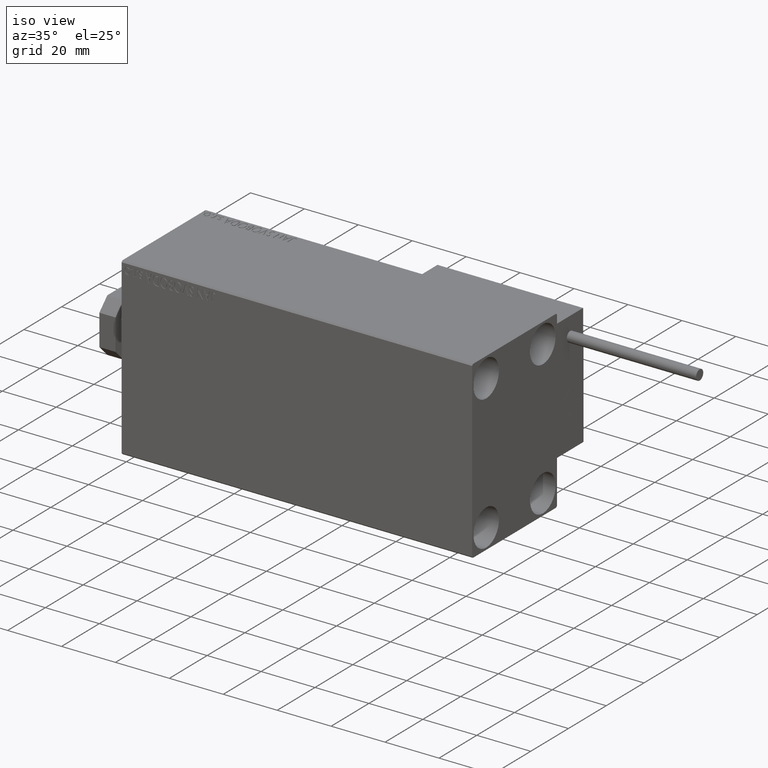
[diagram: clean part render]
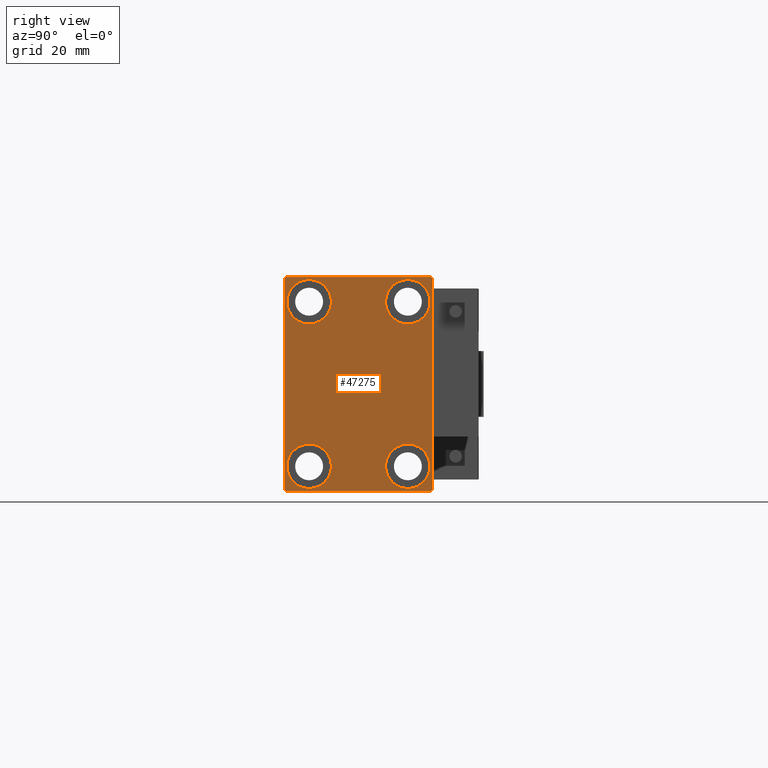
[diagram: tour spotlight — one face highlighted and labeled with its STEP entity id]
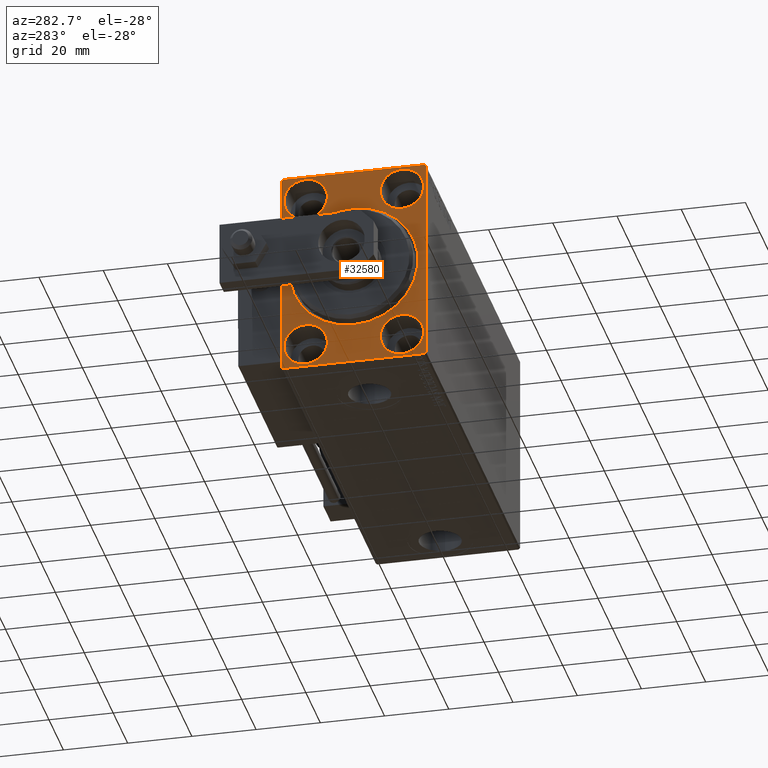
[diagram: tour spotlight — one face highlighted and labeled with its STEP entity id]
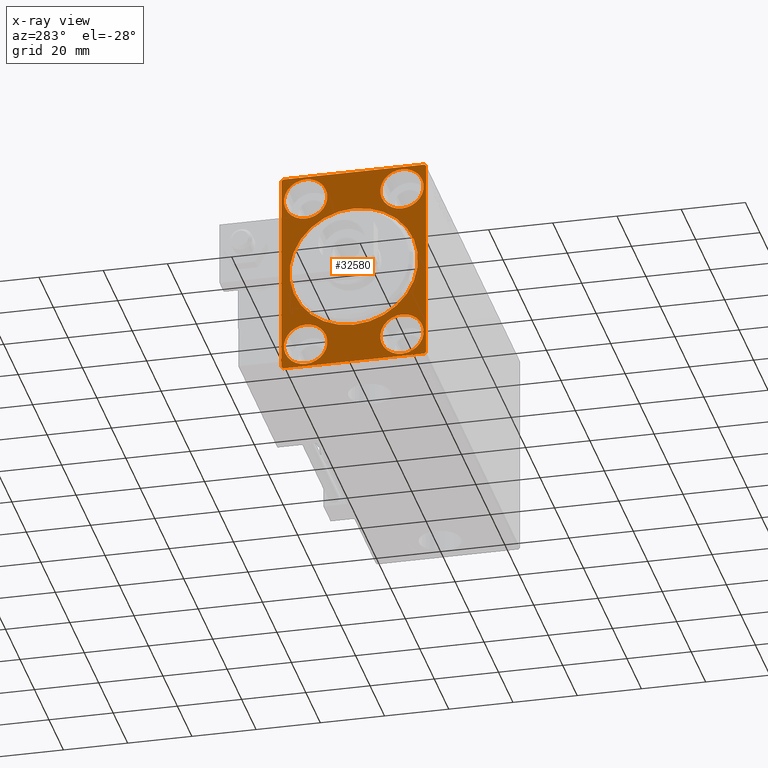
[diagram: x-ray of the same camera — body ghosted, this tour face saturated]
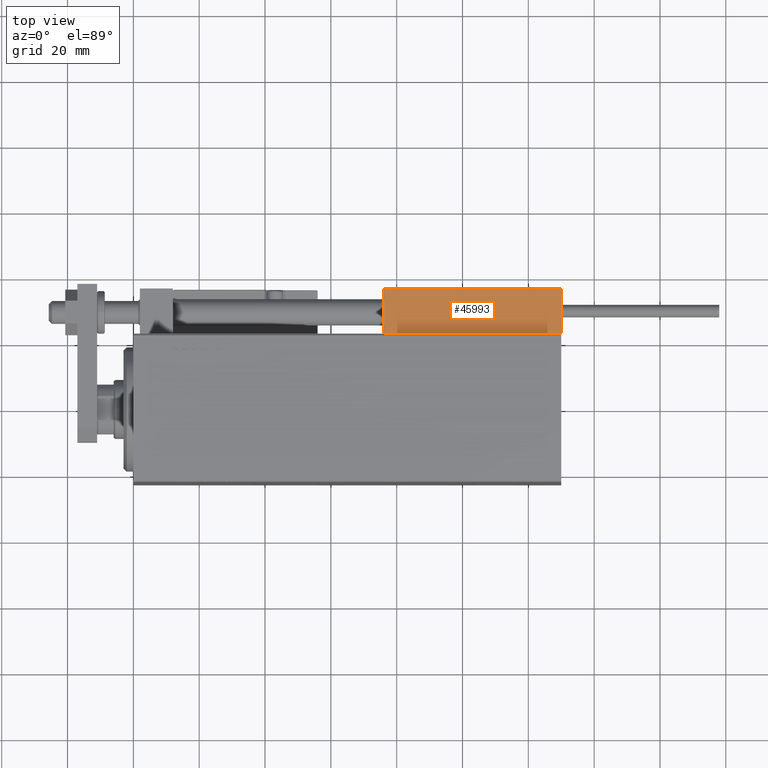
[diagram: tour spotlight — one face highlighted and labeled with its STEP entity id]
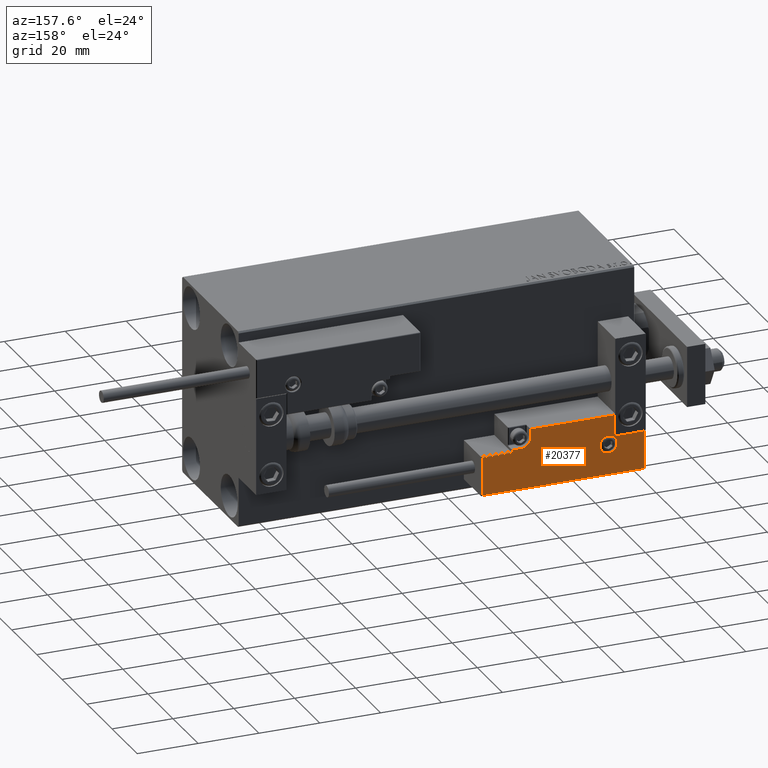
[diagram: tour spotlight — one face highlighted and labeled with its STEP entity id]
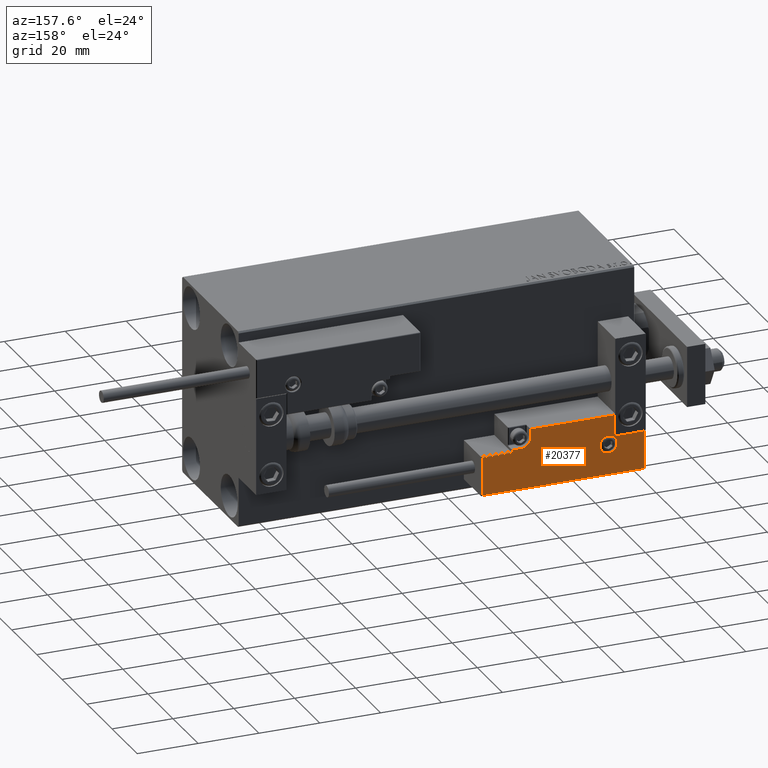
[diagram: tour spotlight — one face highlighted and labeled with its STEP entity id]
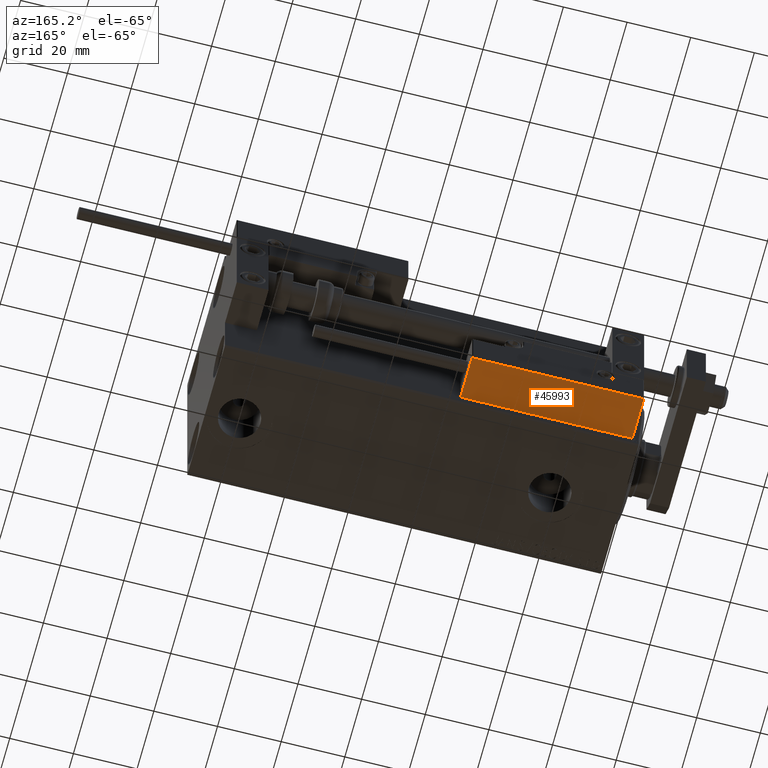
[diagram: tour spotlight — one face highlighted and labeled with its STEP entity id]
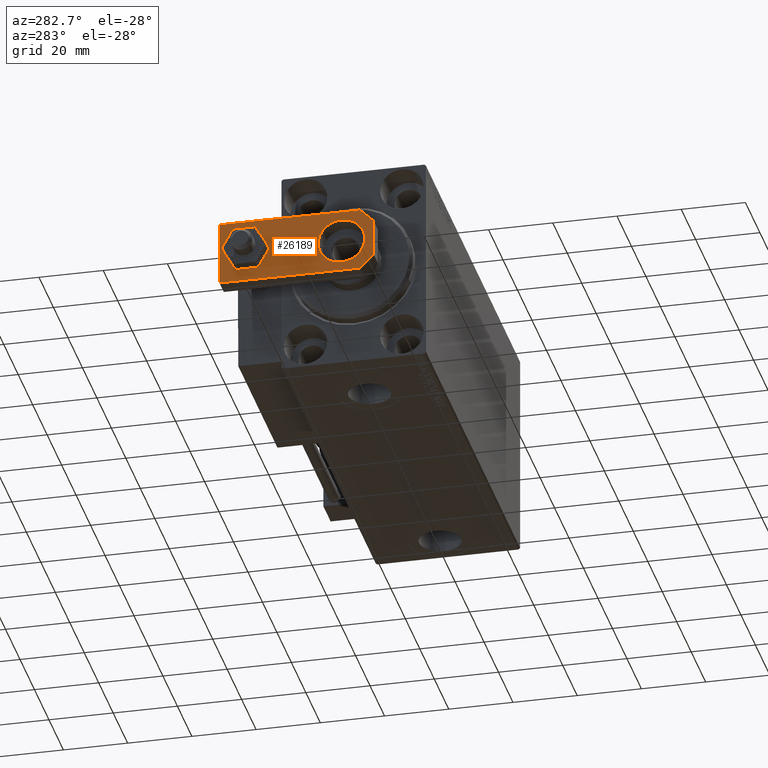
[diagram: tour spotlight — one face highlighted and labeled with its STEP entity id]
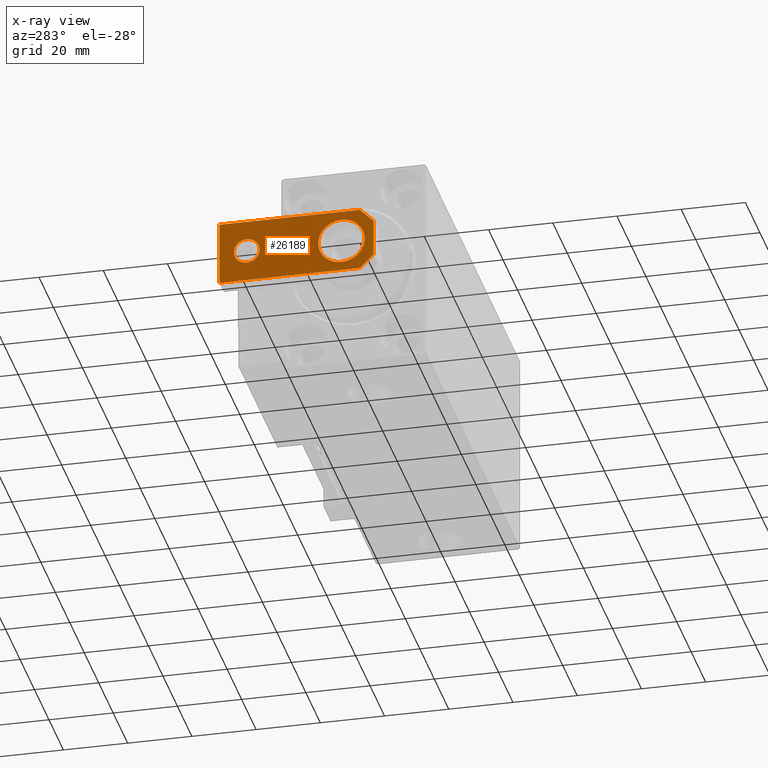
[diagram: x-ray of the same camera — body ghosted, this tour face saturated]
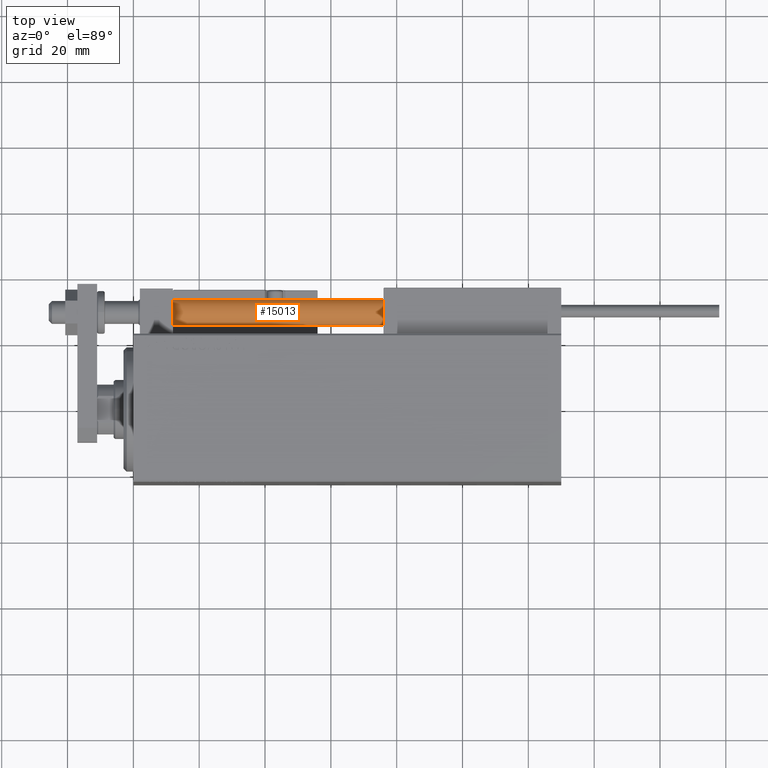
[diagram: tour spotlight — one face highlighted and labeled with its STEP entity id]
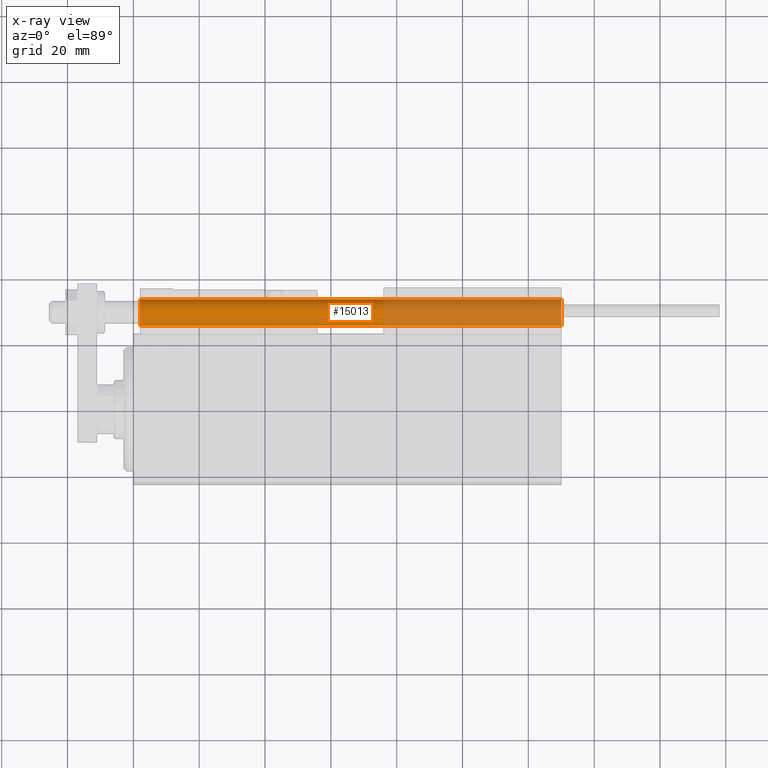
[diagram: x-ray of the same camera — body ghosted, this tour face saturated]
A machine part: a face-by-face anatomy tour. The part has 1282 B-rep faces; the first image is the clean iso view, then the 8 largest visible faces are spotlighted one at a time (largest first), each with its STEP entity span.

Face 1 — right view, entity #47275. In plain terms, the highlighted planar face has unit normal (1, 0, 0).
Definition (entity closure, byte-faithful):
#417 = EDGE_CURVE ( 'NONE', #2799, #31115, #49480, .T. ) ;
#851 = CARTESIAN_POINT ( 'NONE',  ( 130.0000000000000000, 22.50000000000000000, -32.00000000000002132 ) ) ;
#883 = DIRECTION ( 'NONE',  ( 0.000000000000000000, 0.000000000000000000, 1.000000000000000000 ) ) ;
#1060 = ORIENTED_EDGE ( 'NONE', *, *, #14607, .T. ) ;
#1459 = DIRECTION ( 'NONE',  ( -1.000000000000000000, -0.000000000000000000, -0.000000000000000000 ) ) ;
#1614 = VERTEX_POINT ( 'NONE', #5242 ) ;
#1695 = AXIS2_PLACEMENT_3D ( 'NONE', #27249, #35882, #35142 ) ;
#2348 = AXIS2_PLACEMENT_3D ( 'NONE', #48876, #26224, #21898 ) ;
#2604 = ORIENTED_EDGE ( 'NONE', *, *, #14934, .T. ) ;
#2609 = VERTEX_POINT ( 'NONE', #11583 ) ;
#2799 = VERTEX_POINT ( 'NONE', #10245 ) ;
#2852 = VERTEX_POINT ( 'NONE', #37979 ) ;
#3340 = CIRCLE ( 'NONE', #31772, 6.749999999999999112 ) ;
#3664 = VERTEX_POINT ( 'NONE', #851 ) ;
#3912 = CARTESIAN_POINT ( 'NONE',  ( 130.0000000000000000, -14.99999999999999645, 25.00000000000000000 ) ) ;
#4181 = VERTEX_POINT ( 'NONE', #27649 ) ;
#4491 = ORIENTED_EDGE ( 'NONE', *, *, #38018, .T. ) ;
#4663 = DIRECTION ( 'NONE',  ( 0.000000000000000000, 0.000000000000000000, 1.000000000000000000 ) ) ;
#5242 = CARTESIAN_POINT ( 'NONE',  ( 130.0000000000000000, 14.99999999999999645, -18.25000000000000355 ) ) ;
#5475 = VERTEX_POINT ( 'NONE', #48440 ) ;
#6748 = VERTEX_POINT ( 'NONE', #18375 ) ;
#8160 = AXIS2_PLACEMENT_3D ( 'NONE', #40894, #1459, #10094 ) ;
#8510 = CARTESIAN_POINT ( 'NONE',  ( 130.0000000000000000, -14.99999999999999645, 18.25000000000000355 ) ) ;
#8966 = LINE ( 'NONE', #12798, #17185 ) ;
#9376 = ORIENTED_EDGE ( 'NONE', *, *, #29521, .T. ) ;
#9604 = VECTOR ( 'NONE', #30839, 1000.000000000000000 ) ;
#10030 = LINE ( 'NONE', #37254, #25019 ) ;
#10094 = DIRECTION ( 'NONE',  ( 0.000000000000000000, 0.000000000000000000, 1.000000000000000000 ) ) ;
#10245 = CARTESIAN_POINT ( 'NONE',  ( 130.0000000000000000, -21.99999999999999289, 32.49999999999999289 ) ) ;
#10488 = EDGE_CURVE ( 'NONE', #35006, #2852, #15275, .T. ) ;
#11583 = CARTESIAN_POINT ( 'NONE',  ( 130.0000000000000000, -22.00000000000003197, -32.50000000000000711 ) ) ;
#12277 = LINE ( 'NONE', #27785, #39553 ) ;
#12391 = VECTOR ( 'NONE', #14527, 1000.000000000000000 ) ;
#12550 = DIRECTION ( 'NONE',  ( 0.000000000000000000, 0.000000000000000000, 1.000000000000000000 ) ) ;
#12798 = CARTESIAN_POINT ( 'NONE',  ( 130.0000000000000000, -22.50000000000000711, -32.50000000000000711 ) ) ;
#13051 = DIRECTION ( 'NONE',  ( 0.000000000000000000, 1.000000000000000000, 0.000000000000000000 ) ) ;
#13399 = DIRECTION ( 'NONE',  ( 0.000000000000000000, -1.000000000000000000, -1.541976423090495387E-16 ) ) ;
#13740 = EDGE_CURVE ( 'NONE', #6748, #3664, #15351, .T. ) ;
#13812 = ORIENTED_EDGE ( 'NONE', *, *, #417, .T. ) ;
#14128 = AXIS2_PLACEMENT_3D ( 'NONE', #42847, #16117, #4663 ) ;
#14249 = CARTESIAN_POINT ( 'NONE',  ( 130.0000000000000000, 15.00000000000000355, 18.25000000000000355 ) ) ;
#14527 = DIRECTION ( 'NONE',  ( 0.000000000000000000, 0.000000000000000000, -1.000000000000000000 ) ) ;
#14607 = EDGE_CURVE ( 'NONE', #22984, #2799, #35794, .T. ) ;
#14825 = LINE ( 'NONE', #15327, #9604 ) ;
#14934 = EDGE_CURVE ( 'NONE', #45856, #1614, #37929, .T. ) ;
#15130 = EDGE_CURVE ( 'NONE', #41922, #2609, #12277, .T. ) ;
#15275 = CIRCLE ( 'NONE', #43689, 6.749999999999999112 ) ;
#15327 = CARTESIAN_POINT ( 'NONE',  ( 130.0000000000000000, 27.24999999999955236, 27.25000000000068567 ) ) ;
#15351 = LINE ( 'NONE', #38729, #45189 ) ;
#15445 = CARTESIAN_POINT ( 'NONE',  ( 130.0000000000000000, 15.00000000000000355, 31.75000000000000000 ) ) ;
#15449 = ORIENTED_EDGE ( 'NONE', *, *, #13740, .T. ) ;
#16117 = DIRECTION ( 'NONE',  ( -1.000000000000000000, -0.000000000000000000, -0.000000000000000000 ) ) ;
#16522 = EDGE_LOOP ( 'NONE', ( #9376, #4491 ) ) ;
#17185 = VECTOR ( 'NONE', #13051, 1000.000000000000000 ) ;
#17564 = CARTESIAN_POINT ( 'NONE',  ( 130.0000000000000000, -22.50000000000000711, -32.00000000000002132 ) ) ;
#18375 = CARTESIAN_POINT ( 'NONE',  ( 130.0000000000000000, 22.00000000000000000, -32.50000000000000711 ) ) ;
#18426 = VECTOR ( 'NONE', #13399, 1000.000000000000000 ) ;
#18891 = CARTESIAN_POINT ( 'NONE',  ( 130.0000000000000000, -15.00000000000000355, -31.75000000000000000 ) ) ;
#18906 = EDGE_CURVE ( 'NONE', #2852, #35006, #36317, .T. ) ;
#19409 = DIRECTION ( 'NONE',  ( -0.000000000000000000, 0.7071067811865474617, 0.7071067811865474617 ) ) ;
#19529 = AXIS2_PLACEMENT_3D ( 'NONE', #27078, #23016, #47153 ) ;
#20179 = FACE_BOUND ( 'NONE', #16522, .T. ) ;
#20643 = CARTESIAN_POINT ( 'NONE',  ( 130.0000000000000000, 22.00000000000002132, 32.50000000000000000 ) ) ;
#21470 = DIRECTION ( 'NONE',  ( 0.000000000000000000, 0.000000000000000000, 1.000000000000000000 ) ) ;
#21546 = CARTESIAN_POINT ( 'NONE',  ( 130.0000000000000000, 14.99999999999999645, -31.75000000000000000 ) ) ;
#21897 = ORIENTED_EDGE ( 'NONE', *, *, #41605, .T. ) ;
#21898 = DIRECTION ( 'NONE',  ( 0.000000000000000000, 0.000000000000000000, 1.000000000000000000 ) ) ;
#22385 = VECTOR ( 'NONE', #34212, 1000.000000000000114 ) ;
#22984 = VERTEX_POINT ( 'NONE', #20643 ) ;
#23016 = DIRECTION ( 'NONE',  ( 1.000000000000000000, 0.000000000000000000, 0.000000000000000000 ) ) ;
#23205 = EDGE_CURVE ( 'NONE', #33680, #38473, #50326, .T. ) ;
#23957 = ORIENTED_EDGE ( 'NONE', *, *, #18906, .T. ) ;
#24465 = DIRECTION ( 'NONE',  ( -0.000000000000000000, 0.7071067811865376918, -0.7071067811865573427 ) ) ;
#24670 = ORIENTED_EDGE ( 'NONE', *, *, #31986, .T. ) ;
#25019 = VECTOR ( 'NONE', #30129, 1000.000000000000000 ) ;
#25541 = DIRECTION ( 'NONE',  ( -1.000000000000000000, -0.000000000000000000, -0.000000000000000000 ) ) ;
#25668 = CARTESIAN_POINT ( 'NONE',  ( 130.0000000000000000, -14.99999999999999645, 25.00000000000000000 ) ) ;
#26224 = DIRECTION ( 'NONE',  ( -1.000000000000000000, -0.000000000000000000, -0.000000000000000000 ) ) ;
#26829 = FACE_BOUND ( 'NONE', #39540, .T. ) ;
#27078 = CARTESIAN_POINT ( 'NONE',  ( 130.0000000000000000, 0.000000000000000000, 0.000000000000000000 ) ) ;
#27249 = CARTESIAN_POINT ( 'NONE',  ( 130.0000000000000000, 14.99999999999999645, -25.00000000000000000 ) ) ;
#27554 = DIRECTION ( 'NONE',  ( -1.000000000000000000, -0.000000000000000000, -0.000000000000000000 ) ) ;
#27649 = CARTESIAN_POINT ( 'NONE',  ( 130.0000000000000000, -15.00000000000000355, -18.25000000000000355 ) ) ;
#27785 = CARTESIAN_POINT ( 'NONE',  ( 130.0000000000000000, -27.25000000000033040, -27.24999999999957367 ) ) ;
#27815 = FACE_OUTER_BOUND ( 'NONE', #41155, .T. ) ;
#29521 = EDGE_CURVE ( 'NONE', #38852, #4181, #3340, .T. ) ;
#30081 = EDGE_LOOP ( 'NONE', ( #36778, #38997 ) ) ;
#30129 = DIRECTION ( 'NONE',  ( 0.000000000000000000, -1.067522139062650425E-16, 1.000000000000000000 ) ) ;
#30293 = LINE ( 'NONE', #42498, #12391 ) ;
#30787 = ORIENTED_EDGE ( 'NONE', *, *, #15130, .T. ) ;
#30839 = DIRECTION ( 'NONE',  ( -0.000000000000000000, -0.7071067811865622277, 0.7071067811865328068 ) ) ;
#31093 = ORIENTED_EDGE ( 'NONE', *, *, #10488, .T. ) ;
#31115 = VERTEX_POINT ( 'NONE', #36124 ) ;
#31428 = DIRECTION ( 'NONE',  ( -1.000000000000000000, -0.000000000000000000, -0.000000000000000000 ) ) ;
#31626 = PLANE ( 'NONE',  #19529 ) ;
#31772 = AXIS2_PLACEMENT_3D ( 'NONE', #47201, #31428, #883 ) ;
#31986 = EDGE_CURVE ( 'NONE', #1614, #45856, #42356, .T. ) ;
#32698 = EDGE_CURVE ( 'NONE', #2609, #6748, #8966, .T. ) ;
#33680 = VERTEX_POINT ( 'NONE', #15445 ) ;
#33921 = ORIENTED_EDGE ( 'NONE', *, *, #34694, .T. ) ;
#34212 = DIRECTION ( 'NONE',  ( 0.000000000000000000, -0.7071067811865474617, -0.7071067811865474617 ) ) ;
#34315 = DIRECTION ( 'NONE',  ( -1.000000000000000000, -0.000000000000000000, -0.000000000000000000 ) ) ;
#34694 = EDGE_CURVE ( 'NONE', #31115, #41922, #30293, .T. ) ;
#35006 = VERTEX_POINT ( 'NONE', #8510 ) ;
#35142 = DIRECTION ( 'NONE',  ( 0.000000000000000000, 0.000000000000000000, 1.000000000000000000 ) ) ;
#35794 = LINE ( 'NONE', #36287, #18426 ) ;
#35882 = DIRECTION ( 'NONE',  ( -1.000000000000000000, -0.000000000000000000, -0.000000000000000000 ) ) ;
#36124 = CARTESIAN_POINT ( 'NONE',  ( 130.0000000000000000, -22.50000000000000711, 31.99999999999999289 ) ) ;
#36287 = CARTESIAN_POINT ( 'NONE',  ( 130.0000000000000000, 22.49999999999999289, 32.50000000000000000 ) ) ;
#36317 = CIRCLE ( 'NONE', #41197, 6.749999999999999112 ) ;
#36778 = ORIENTED_EDGE ( 'NONE', *, *, #46710, .T. ) ;
#37254 = CARTESIAN_POINT ( 'NONE',  ( 130.0000000000000000, 22.50000000000000000, -32.50000000000000711 ) ) ;
#37436 = CIRCLE ( 'NONE', #8160, 6.749999999999999112 ) ;
#37929 = CIRCLE ( 'NONE', #40355, 6.749999999999999112 ) ;
#37979 = CARTESIAN_POINT ( 'NONE',  ( 130.0000000000000000, -14.99999999999999645, 31.75000000000000000 ) ) ;
#38018 = EDGE_CURVE ( 'NONE', #4181, #38852, #49064, .T. ) ;
#38473 = VERTEX_POINT ( 'NONE', #14249 ) ;
#38729 = CARTESIAN_POINT ( 'NONE',  ( 130.0000000000000000, 27.25000000000000711, -27.25000000000000711 ) ) ;
#38765 = EDGE_LOOP ( 'NONE', ( #31093, #23957 ) ) ;
#38852 = VERTEX_POINT ( 'NONE', #18891 ) ;
#38997 = ORIENTED_EDGE ( 'NONE', *, *, #23205, .T. ) ;
#39265 = FACE_BOUND ( 'NONE', #38765, .T. ) ;
#39540 = EDGE_LOOP ( 'NONE', ( #2604, #24670 ) ) ;
#39553 = VECTOR ( 'NONE', #24465, 1000.000000000000114 ) ;
#40326 = EDGE_CURVE ( 'NONE', #3664, #5475, #10030, .T. ) ;
#40355 = AXIS2_PLACEMENT_3D ( 'NONE', #45119, #25541, #21470 ) ;
#40894 = CARTESIAN_POINT ( 'NONE',  ( 130.0000000000000000, 15.00000000000000355, 25.00000000000000000 ) ) ;
#41155 = EDGE_LOOP ( 'NONE', ( #1060, #13812, #33921, #30787, #48488, #15449, #41749, #21897 ) ) ;
#41190 = DIRECTION ( 'NONE',  ( 0.000000000000000000, 0.000000000000000000, 1.000000000000000000 ) ) ;
#41197 = AXIS2_PLACEMENT_3D ( 'NONE', #25668, #34315, #41190 ) ;
#41605 = EDGE_CURVE ( 'NONE', #5475, #22984, #14825, .T. ) ;
#41749 = ORIENTED_EDGE ( 'NONE', *, *, #40326, .T. ) ;
#41922 = VERTEX_POINT ( 'NONE', #17564 ) ;
#42356 = CIRCLE ( 'NONE', #1695, 6.749999999999999112 ) ;
#42498 = CARTESIAN_POINT ( 'NONE',  ( 130.0000000000000000, -22.50000000000000711, 32.49999999999999289 ) ) ;
#42847 = CARTESIAN_POINT ( 'NONE',  ( 130.0000000000000000, -15.00000000000000355, -25.00000000000000000 ) ) ;
#43689 = AXIS2_PLACEMENT_3D ( 'NONE', #3912, #27554, #12550 ) ;
#45119 = CARTESIAN_POINT ( 'NONE',  ( 130.0000000000000000, 14.99999999999999645, -25.00000000000000000 ) ) ;
#45189 = VECTOR ( 'NONE', #19409, 1000.000000000000114 ) ;
#45407 = CARTESIAN_POINT ( 'NONE',  ( 130.0000000000000000, -27.25000000000000000, 27.25000000000000000 ) ) ;
#45856 = VERTEX_POINT ( 'NONE', #21546 ) ;
#46413 = FACE_BOUND ( 'NONE', #30081, .T. ) ;
#46710 = EDGE_CURVE ( 'NONE', #38473, #33680, #37436, .T. ) ;
#47153 = DIRECTION ( 'NONE',  ( 0.000000000000000000, 0.000000000000000000, -1.000000000000000000 ) ) ;
#47201 = CARTESIAN_POINT ( 'NONE',  ( 130.0000000000000000, -15.00000000000000355, -25.00000000000000000 ) ) ;
#47275 = ADVANCED_FACE ( 'NONE', ( #26829, #39265, #46413, #20179, #27815 ), #31626, .T. ) ;
#48440 = CARTESIAN_POINT ( 'NONE',  ( 130.0000000000000000, 22.49999999999999289, 32.00000000000004974 ) ) ;
#48488 = ORIENTED_EDGE ( 'NONE', *, *, #32698, .T. ) ;
#48876 = CARTESIAN_POINT ( 'NONE',  ( 130.0000000000000000, 15.00000000000000355, 25.00000000000000000 ) ) ;
#49064 = CIRCLE ( 'NONE', #14128, 6.749999999999999112 ) ;
#49480 = LINE ( 'NONE', #45407, #22385 ) ;
#50326 = CIRCLE ( 'NONE', #2348, 6.749999999999999112 ) ;

Face 2 — auxiliary view, entity #32580. An x-ray twin of the same camera follows (body ghosted, this face saturated) — the face is partly hidden behind the body. In plain terms, the highlighted planar face has unit normal (1, 0, 0).
Definition (entity closure, byte-faithful):
#193 = LINE ( 'NONE', #30736, #12715 ) ;
#429 = DIRECTION ( 'NONE',  ( 0.000000000000000000, 0.000000000000000000, -1.000000000000000000 ) ) ;
#817 = CIRCLE ( 'NONE', #8950, 6.749999999999999112 ) ;
#1048 = LINE ( 'NONE', #47861, #43696 ) ;
#1346 = CIRCLE ( 'NONE', #29784, 6.749999999999999112 ) ;
#1448 = CIRCLE ( 'NONE', #32324, 6.749999999999999112 ) ;
#2544 = DIRECTION ( 'NONE',  ( -1.000000000000000000, 0.000000000000000000, 0.000000000000000000 ) ) ;
#2551 = ORIENTED_EDGE ( 'NONE', *, *, #35772, .F. ) ;
#2803 = DIRECTION ( 'NONE',  ( 0.000000000000000000, -1.067522139062650425E-16, 1.000000000000000000 ) ) ;
#3272 = VERTEX_POINT ( 'NONE', #19515 ) ;
#3336 = ORIENTED_EDGE ( 'NONE', *, *, #19286, .F. ) ;
#3619 = CARTESIAN_POINT ( 'NONE',  ( 0.000000000000000000, 22.00000000000002132, 32.50000000000000000 ) ) ;
#3868 = VERTEX_POINT ( 'NONE', #3619 ) ;
#4239 = CARTESIAN_POINT ( 'NONE',  ( 0.000000000000000000, -14.99999999999999645, 31.75000000000000000 ) ) ;
#4445 = CARTESIAN_POINT ( 'NONE',  ( 0.000000000000000000, -14.99999999999999645, 25.00000000000000000 ) ) ;
#4844 = CARTESIAN_POINT ( 'NONE',  ( 0.000000000000000000, 22.49999999999999289, 32.50000000000000000 ) ) ;
#5035 = FACE_BOUND ( 'NONE', #34020, .T. ) ;
#5227 = DIRECTION ( 'NONE',  ( 0.000000000000000000, 0.000000000000000000, 1.000000000000000000 ) ) ;
#5681 = ORIENTED_EDGE ( 'NONE', *, *, #17710, .F. ) ;
#5949 = DIRECTION ( 'NONE',  ( 0.000000000000000000, 0.000000000000000000, 1.000000000000000000 ) ) ;
#6031 = CARTESIAN_POINT ( 'NONE',  ( 0.000000000000000000, -15.00000000000000355, -31.75000000000000000 ) ) ;
#6553 = VERTEX_POINT ( 'NONE', #6031 ) ;
#6912 = CARTESIAN_POINT ( 'NONE',  ( 0.000000000000000000, 22.00000000000002132, 32.50000000000000000 ) ) ;
#7179 = VECTOR ( 'NONE', #7418, 1000.000000000000000 ) ;
#7418 = DIRECTION ( 'NONE',  ( -0.000000000000000000, 0.7071067811865622277, -0.7071067811865328068 ) ) ;
#7636 = CARTESIAN_POINT ( 'NONE',  ( 0.000000000000000000, 14.99999999999999645, -31.75000000000000000 ) ) ;
#7737 = VERTEX_POINT ( 'NONE', #27212 ) ;
#7827 = CARTESIAN_POINT ( 'NONE',  ( 0.000000000000000000, 15.00000000000000355, 25.00000000000000000 ) ) ;
#8154 = DIRECTION ( 'NONE',  ( 0.000000000000000000, -1.000000000000000000, -1.541976423090495387E-16 ) ) ;
#8298 = ORIENTED_EDGE ( 'NONE', *, *, #10064, .F. ) ;
#8898 = CARTESIAN_POINT ( 'NONE',  ( 0.000000000000000000, -15.00000000000000355, -25.00000000000000000 ) ) ;
#8950 = AXIS2_PLACEMENT_3D ( 'NONE', #14930, #45953, #26624 ) ;
#9002 = DIRECTION ( 'NONE',  ( 0.000000000000000000, 0.000000000000000000, 1.000000000000000000 ) ) ;
#9577 = AXIS2_PLACEMENT_3D ( 'NONE', #40507, #21169, #17111 ) ;
#9644 = EDGE_CURVE ( 'NONE', #44983, #7737, #16902, .T. ) ;
#9906 = VECTOR ( 'NONE', #14867, 1000.000000000000114 ) ;
#9935 = ORIENTED_EDGE ( 'NONE', *, *, #15464, .T. ) ;
#9977 = CIRCLE ( 'NONE', #29478, 6.749999999999999112 ) ;
#10064 = EDGE_CURVE ( 'NONE', #6553, #49881, #1448, .T. ) ;
#10375 = VERTEX_POINT ( 'NONE', #14619 ) ;
#10592 = AXIS2_PLACEMENT_3D ( 'NONE', #32444, #44641, #5227 ) ;
#10672 = CIRCLE ( 'NONE', #40749, 20.00000000000000355 ) ;
#10988 = CARTESIAN_POINT ( 'NONE',  ( 0.000000000000000000, 15.00000000000000355, 31.75000000000000000 ) ) ;
#12257 = ORIENTED_EDGE ( 'NONE', *, *, #46005, .F. ) ;
#12536 = ORIENTED_EDGE ( 'NONE', *, *, #28620, .F. ) ;
#12715 = VECTOR ( 'NONE', #429, 1000.000000000000000 ) ;
#13597 = VECTOR ( 'NONE', #50031, 1000.000000000000000 ) ;
#14473 = VECTOR ( 'NONE', #2803, 1000.000000000000000 ) ;
#14500 = DIRECTION ( 'NONE',  ( 1.000000000000000000, 0.000000000000000000, 0.000000000000000000 ) ) ;
#14525 = DIRECTION ( 'NONE',  ( 0.000000000000000000, 0.000000000000000000, 1.000000000000000000 ) ) ;
#14619 = CARTESIAN_POINT ( 'NONE',  ( 0.000000000000000000, -21.99999999999999289, 32.49999999999999289 ) ) ;
#14843 = EDGE_CURVE ( 'NONE', #21125, #33966, #1346, .T. ) ;
#14867 = DIRECTION ( 'NONE',  ( -0.000000000000000000, 0.7071067811865474617, 0.7071067811865474617 ) ) ;
#14930 = CARTESIAN_POINT ( 'NONE',  ( 0.000000000000000000, 15.00000000000000355, 25.00000000000000000 ) ) ;
#15464 = EDGE_CURVE ( 'NONE', #32350, #34919, #36293, .T. ) ;
#15731 = DIRECTION ( 'NONE',  ( 0.000000000000000000, 0.000000000000000000, 1.000000000000000000 ) ) ;
#16131 = AXIS2_PLACEMENT_3D ( 'NONE', #18332, #2544, #14525 ) ;
#16415 = EDGE_LOOP ( 'NONE', ( #38778, #17453, #36651, #21228, #5681, #9935, #3336, #32864 ) ) ;
#16562 = EDGE_CURVE ( 'NONE', #24835, #43963, #1048, .T. ) ;
#16902 = CIRCLE ( 'NONE', #9577, 20.00000000000000355 ) ;
#17102 = DIRECTION ( 'NONE',  ( 0.000000000000000000, 0.000000000000000000, 1.000000000000000000 ) ) ;
#17111 = DIRECTION ( 'NONE',  ( 0.000000000000000000, 0.000000000000000000, -1.000000000000000000 ) ) ;
#17246 = DIRECTION ( 'NONE',  ( 1.000000000000000000, 0.000000000000000000, 0.000000000000000000 ) ) ;
#17410 = DIRECTION ( 'NONE',  ( -1.000000000000000000, 0.000000000000000000, 0.000000000000000000 ) ) ;
#17453 = ORIENTED_EDGE ( 'NONE', *, *, #31538, .T. ) ;
#17710 = EDGE_CURVE ( 'NONE', #32350, #43490, #30292, .T. ) ;
#18001 = VERTEX_POINT ( 'NONE', #33288 ) ;
#18058 = EDGE_CURVE ( 'NONE', #3272, #43963, #193, .T. ) ;
#18172 = ORIENTED_EDGE ( 'NONE', *, *, #9644, .T. ) ;
#18332 = CARTESIAN_POINT ( 'NONE',  ( 0.000000000000000000, 14.99999999999999645, -25.00000000000000000 ) ) ;
#18513 = EDGE_LOOP ( 'NONE', ( #34682, #12536 ) ) ;
#18569 = CIRCLE ( 'NONE', #16131, 6.749999999999999112 ) ;
#18841 = ORIENTED_EDGE ( 'NONE', *, *, #35315, .F. ) ;
#19286 = EDGE_CURVE ( 'NONE', #24835, #34919, #39063, .T. ) ;
#19515 = CARTESIAN_POINT ( 'NONE',  ( 0.000000000000000000, -22.50000000000000711, 31.99999999999999289 ) ) ;
#19561 = EDGE_LOOP ( 'NONE', ( #28579, #8298 ) ) ;
#20438 = AXIS2_PLACEMENT_3D ( 'NONE', #36566, #17246, #40639 ) ;
#20550 = FACE_BOUND ( 'NONE', #18513, .T. ) ;
#21125 = VERTEX_POINT ( 'NONE', #4239 ) ;
#21169 = DIRECTION ( 'NONE',  ( 1.000000000000000000, 0.000000000000000000, 0.000000000000000000 ) ) ;
#21228 = ORIENTED_EDGE ( 'NONE', *, *, #41656, .T. ) ;
#21959 = EDGE_LOOP ( 'NONE', ( #2551, #12257 ) ) ;
#21966 = CIRCLE ( 'NONE', #10592, 6.749999999999999112 ) ;
#22240 = LINE ( 'NONE', #31133, #9906 ) ;
#23061 = CARTESIAN_POINT ( 'NONE',  ( 0.000000000000000000, -22.50000000000000711, -32.50000000000000711 ) ) ;
#23073 = EDGE_CURVE ( 'NONE', #18001, #24192, #18569, .T. ) ;
#23201 = VERTEX_POINT ( 'NONE', #33344 ) ;
#24192 = VERTEX_POINT ( 'NONE', #7636 ) ;
#24197 = DIRECTION ( 'NONE',  ( -0.000000000000000000, -0.7071067811865376918, 0.7071067811865573427 ) ) ;
#24472 = CIRCLE ( 'NONE', #45618, 6.749999999999999112 ) ;
#24835 = VERTEX_POINT ( 'NONE', #35713 ) ;
#24867 = PLANE ( 'NONE',  #20438 ) ;
#24961 = VECTOR ( 'NONE', #28405, 1000.000000000000114 ) ;
#25731 = CARTESIAN_POINT ( 'NONE',  ( 0.000000000000000000, -14.99999999999999645, 25.00000000000000000 ) ) ;
#26624 = DIRECTION ( 'NONE',  ( 0.000000000000000000, 0.000000000000000000, 1.000000000000000000 ) ) ;
#26862 = CARTESIAN_POINT ( 'NONE',  ( 0.000000000000000000, 22.00000000000000000, -32.50000000000000711 ) ) ;
#27212 = CARTESIAN_POINT ( 'NONE',  ( 0.000000000000000000, 2.449293598294706907E-15, -20.00000000000000355 ) ) ;
#28405 = DIRECTION ( 'NONE',  ( 0.000000000000000000, -0.7071067811865474617, -0.7071067811865474617 ) ) ;
#28484 = CARTESIAN_POINT ( 'NONE',  ( 0.000000000000000000, -22.50000000000000711, -32.00000000000002132 ) ) ;
#28579 = ORIENTED_EDGE ( 'NONE', *, *, #47036, .F. ) ;
#28620 = EDGE_CURVE ( 'NONE', #24192, #18001, #24472, .T. ) ;
#28685 = FACE_BOUND ( 'NONE', #19561, .T. ) ;
#29478 = AXIS2_PLACEMENT_3D ( 'NONE', #7827, #35066, #15731 ) ;
#29784 = AXIS2_PLACEMENT_3D ( 'NONE', #4445, #43610, #9002 ) ;
#29789 = DIRECTION ( 'NONE',  ( -1.000000000000000000, 0.000000000000000000, 0.000000000000000000 ) ) ;
#30001 = CARTESIAN_POINT ( 'NONE',  ( 0.000000000000000000, -15.00000000000000355, -18.25000000000000355 ) ) ;
#30142 = VECTOR ( 'NONE', #8154, 1000.000000000000000 ) ;
#30292 = LINE ( 'NONE', #37669, #14473 ) ;
#30736 = CARTESIAN_POINT ( 'NONE',  ( 0.000000000000000000, -22.50000000000000711, 32.49999999999999289 ) ) ;
#31133 = CARTESIAN_POINT ( 'NONE',  ( 0.000000000000000000, -22.50000000000000711, 31.99999999999999289 ) ) ;
#31538 = EDGE_CURVE ( 'NONE', #3272, #10375, #22240, .T. ) ;
#31945 = EDGE_CURVE ( 'NONE', #3868, #10375, #36133, .T. ) ;
#32242 = FACE_BOUND ( 'NONE', #21959, .T. ) ;
#32324 = AXIS2_PLACEMENT_3D ( 'NONE', #8898, #33807, #36876 ) ;
#32350 = VERTEX_POINT ( 'NONE', #47515 ) ;
#32444 = CARTESIAN_POINT ( 'NONE',  ( 0.000000000000000000, -15.00000000000000355, -25.00000000000000000 ) ) ;
#32580 = ADVANCED_FACE ( 'NONE', ( #5035, #20550, #36069, #32242, #28685, #47767 ), #24867, .F. ) ;
#32864 = ORIENTED_EDGE ( 'NONE', *, *, #16562, .T. ) ;
#32920 = CARTESIAN_POINT ( 'NONE',  ( 0.000000000000000000, 14.99999999999999645, -25.00000000000000000 ) ) ;
#33288 = CARTESIAN_POINT ( 'NONE',  ( 0.000000000000000000, 14.99999999999999645, -18.25000000000000355 ) ) ;
#33344 = CARTESIAN_POINT ( 'NONE',  ( 0.000000000000000000, 15.00000000000000355, 18.25000000000000355 ) ) ;
#33422 = EDGE_CURVE ( 'NONE', #7737, #44983, #10672, .T. ) ;
#33486 = CARTESIAN_POINT ( 'NONE',  ( 0.000000000000000000, 22.49999999999999289, 32.00000000000004974 ) ) ;
#33807 = DIRECTION ( 'NONE',  ( -1.000000000000000000, 0.000000000000000000, 0.000000000000000000 ) ) ;
#33966 = VERTEX_POINT ( 'NONE', #48999 ) ;
#34020 = EDGE_LOOP ( 'NONE', ( #18172, #46106 ) ) ;
#34682 = ORIENTED_EDGE ( 'NONE', *, *, #23073, .F. ) ;
#34919 = VERTEX_POINT ( 'NONE', #26862 ) ;
#35066 = DIRECTION ( 'NONE',  ( -1.000000000000000000, 0.000000000000000000, 0.000000000000000000 ) ) ;
#35315 = EDGE_CURVE ( 'NONE', #33966, #21125, #40821, .T. ) ;
#35713 = CARTESIAN_POINT ( 'NONE',  ( 0.000000000000000000, -22.00000000000003197, -32.50000000000000711 ) ) ;
#35772 = EDGE_CURVE ( 'NONE', #38154, #23201, #9977, .T. ) ;
#36069 = FACE_BOUND ( 'NONE', #49556, .T. ) ;
#36133 = LINE ( 'NONE', #4844, #30142 ) ;
#36193 = CARTESIAN_POINT ( 'NONE',  ( 0.000000000000000000, 0.000000000000000000, 20.00000000000000355 ) ) ;
#36293 = LINE ( 'NONE', #44185, #24961 ) ;
#36566 = CARTESIAN_POINT ( 'NONE',  ( 0.000000000000000000, 0.000000000000000000, 0.000000000000000000 ) ) ;
#36651 = ORIENTED_EDGE ( 'NONE', *, *, #31945, .F. ) ;
#36876 = DIRECTION ( 'NONE',  ( 0.000000000000000000, 0.000000000000000000, 1.000000000000000000 ) ) ;
#37669 = CARTESIAN_POINT ( 'NONE',  ( 0.000000000000000000, 22.50000000000000000, -32.50000000000000711 ) ) ;
#38154 = VERTEX_POINT ( 'NONE', #10988 ) ;
#38778 = ORIENTED_EDGE ( 'NONE', *, *, #18058, .F. ) ;
#39063 = LINE ( 'NONE', #23061, #13597 ) ;
#40507 = CARTESIAN_POINT ( 'NONE',  ( 0.000000000000000000, 0.000000000000000000, 0.000000000000000000 ) ) ;
#40639 = DIRECTION ( 'NONE',  ( 0.000000000000000000, 0.000000000000000000, -1.000000000000000000 ) ) ;
#40749 = AXIS2_PLACEMENT_3D ( 'NONE', #49344, #14500, #47522 ) ;
#40821 = CIRCLE ( 'NONE', #41664, 6.749999999999999112 ) ;
#41656 = EDGE_CURVE ( 'NONE', #3868, #43490, #41790, .T. ) ;
#41664 = AXIS2_PLACEMENT_3D ( 'NONE', #25731, #29789, #17102 ) ;
#41790 = LINE ( 'NONE', #6912, #7179 ) ;
#43490 = VERTEX_POINT ( 'NONE', #33486 ) ;
#43610 = DIRECTION ( 'NONE',  ( -1.000000000000000000, 0.000000000000000000, 0.000000000000000000 ) ) ;
#43696 = VECTOR ( 'NONE', #24197, 1000.000000000000114 ) ;
#43963 = VERTEX_POINT ( 'NONE', #28484 ) ;
#44185 = CARTESIAN_POINT ( 'NONE',  ( 0.000000000000000000, 22.50000000000000000, -32.00000000000002132 ) ) ;
#44641 = DIRECTION ( 'NONE',  ( -1.000000000000000000, 0.000000000000000000, 0.000000000000000000 ) ) ;
#44983 = VERTEX_POINT ( 'NONE', #36193 ) ;
#45618 = AXIS2_PLACEMENT_3D ( 'NONE', #32920, #17410, #5949 ) ;
#45953 = DIRECTION ( 'NONE',  ( -1.000000000000000000, 0.000000000000000000, 0.000000000000000000 ) ) ;
#46005 = EDGE_CURVE ( 'NONE', #23201, #38154, #817, .T. ) ;
#46106 = ORIENTED_EDGE ( 'NONE', *, *, #33422, .T. ) ;
#46431 = ORIENTED_EDGE ( 'NONE', *, *, #14843, .F. ) ;
#47036 = EDGE_CURVE ( 'NONE', #49881, #6553, #21966, .T. ) ;
#47515 = CARTESIAN_POINT ( 'NONE',  ( 0.000000000000000000, 22.50000000000000000, -32.00000000000002132 ) ) ;
#47522 = DIRECTION ( 'NONE',  ( 0.000000000000000000, 0.000000000000000000, -1.000000000000000000 ) ) ;
#47767 = FACE_OUTER_BOUND ( 'NONE', #16415, .T. ) ;
#47861 = CARTESIAN_POINT ( 'NONE',  ( 0.000000000000000000, -22.00000000000003197, -32.50000000000000711 ) ) ;
#48999 = CARTESIAN_POINT ( 'NONE',  ( 0.000000000000000000, -14.99999999999999645, 18.25000000000000355 ) ) ;
#49344 = CARTESIAN_POINT ( 'NONE',  ( 0.000000000000000000, 0.000000000000000000, 0.000000000000000000 ) ) ;
#49556 = EDGE_LOOP ( 'NONE', ( #46431, #18841 ) ) ;
#49881 = VERTEX_POINT ( 'NONE', #30001 ) ;
#50031 = DIRECTION ( 'NONE',  ( 0.000000000000000000, 1.000000000000000000, 0.000000000000000000 ) ) ;

Face 3 — top view, entity #45993. In plain terms, the highlighted planar face has unit normal (-0, -0, -1).
Definition (entity closure, byte-faithful):
#156 = CARTESIAN_POINT ( 'NONE',  ( -26.99999999999993605, 20.00000000000002132, 14.00000000000000000 ) ) ;
#3244 = VECTOR ( 'NONE', #19979, 1000.000000000000000 ) ;
#6373 = VECTOR ( 'NONE', #29538, 1000.000000000000000 ) ;
#6381 = CARTESIAN_POINT ( 'NONE',  ( 27.00000000000006395, 20.00000000000001776, 13.70000000000000107 ) ) ;
#7393 = LINE ( 'NONE', #38437, #44853 ) ;
#7635 = ORIENTED_EDGE ( 'NONE', *, *, #42812, .T. ) ;
#10337 = DIRECTION ( 'NONE',  ( 1.000000000000000000, -6.424901762877063495E-17, 0.000000000000000000 ) ) ;
#11290 = ORIENTED_EDGE ( 'NONE', *, *, #30916, .T. ) ;
#17088 = CARTESIAN_POINT ( 'NONE',  ( -26.99999999999993605, 20.00000000000002132, 13.70000000000000107 ) ) ;
#17143 = EDGE_CURVE ( 'NONE', #30645, #36474, #36731, .T. ) ;
#17599 = VERTEX_POINT ( 'NONE', #17088 ) ;
#18486 = PLANE ( 'NONE',  #27624 ) ;
#19493 = LINE ( 'NONE', #156, #3244 ) ;
#19979 = DIRECTION ( 'NONE',  ( -0.000000000000000000, -0.000000000000000000, -1.000000000000000000 ) ) ;
#20707 = DIRECTION ( 'NONE',  ( -0.000000000000000000, -0.000000000000000000, -1.000000000000000000 ) ) ;
#22048 = FACE_OUTER_BOUND ( 'NONE', #41704, .T. ) ;
#25167 = ORIENTED_EDGE ( 'NONE', *, *, #17143, .T. ) ;
#26084 = ORIENTED_EDGE ( 'NONE', *, *, #46175, .F. ) ;
#26779 = VERTEX_POINT ( 'NONE', #35069 ) ;
#26998 = DIRECTION ( 'NONE',  ( -1.000000000000000000, 6.424901762877062263E-17, 0.000000000000000000 ) ) ;
#27624 = AXIS2_PLACEMENT_3D ( 'NONE', #49785, #37566, #10337 ) ;
#29538 = DIRECTION ( 'NONE',  ( 1.000000000000000000, -6.424901762877063495E-17, -0.000000000000000000 ) ) ;
#30645 = VERTEX_POINT ( 'NONE', #33693 ) ;
#30916 = EDGE_CURVE ( 'NONE', #36474, #26779, #7393, .T. ) ;
#33693 = CARTESIAN_POINT ( 'NONE',  ( 27.00000000000006395, 20.00000000000001776, 13.70000000000000107 ) ) ;
#35069 = CARTESIAN_POINT ( 'NONE',  ( -26.99999999999993605, 20.00000000000002132, 0.000000000000000000 ) ) ;
#36474 = VERTEX_POINT ( 'NONE', #48087 ) ;
#36731 = LINE ( 'NONE', #44359, #45339 ) ;
#37566 = DIRECTION ( 'NONE',  ( -6.424901762877063495E-17, -1.000000000000000000, 0.000000000000000000 ) ) ;
#38437 = CARTESIAN_POINT ( 'NONE',  ( 27.00000000000006395, 20.00000000000001776, 0.000000000000000000 ) ) ;
#40494 = LINE ( 'NONE', #6381, #6373 ) ;
#41704 = EDGE_LOOP ( 'NONE', ( #26084, #7635, #25167, #11290 ) ) ;
#42812 = EDGE_CURVE ( 'NONE', #17599, #30645, #40494, .T. ) ;
#44359 = CARTESIAN_POINT ( 'NONE',  ( 27.00000000000006395, 20.00000000000001776, 14.00000000000000000 ) ) ;
#44853 = VECTOR ( 'NONE', #26998, 1000.000000000000000 ) ;
#45339 = VECTOR ( 'NONE', #20707, 1000.000000000000000 ) ;
#45993 = ADVANCED_FACE ( 'NONE', ( #22048 ), #18486, .F. ) ;
#46175 = EDGE_CURVE ( 'NONE', #17599, #26779, #19493, .T. ) ;
#48087 = CARTESIAN_POINT ( 'NONE',  ( 27.00000000000006395, 20.00000000000001776, 0.000000000000000000 ) ) ;
#49785 = CARTESIAN_POINT ( 'NONE',  ( 27.00000000000006395, 20.00000000000001776, 14.00000000000000000 ) ) ;

Face 4 — auxiliary view, entity #20377. In plain terms, the highlighted planar face has unit normal (0, 1, -0).
Definition (entity closure, byte-faithful):
#850 = ORIENTED_EDGE ( 'NONE', *, *, #48372, .T. ) ;
#887 = CIRCLE ( 'NONE', #26915, 2.800000000000000266 ) ;
#1071 = DIRECTION ( 'NONE',  ( 1.000000000000000000, 0.000000000000000000, 0.000000000000000000 ) ) ;
#1536 = VERTEX_POINT ( 'NONE', #8054 ) ;
#2933 = LINE ( 'NONE', #33986, #25717 ) ;
#4732 = CARTESIAN_POINT ( 'NONE',  ( 0.000000000000000000, 0.000000000000000000, 14.00000000000000000 ) ) ;
#4971 = DIRECTION ( 'NONE',  ( -1.000000000000000000, 6.424901762877063495E-17, -0.000000000000000000 ) ) ;
#5918 = DIRECTION ( 'NONE',  ( 1.000000000000000000, -1.734723475976796001E-16, 0.000000000000000000 ) ) ;
#6983 = ORIENTED_EDGE ( 'NONE', *, *, #18508, .T. ) ;
#8054 = CARTESIAN_POINT ( 'NONE',  ( -16.69999999999999218, 7.300000000000003375, 14.00000000000000000 ) ) ;
#9016 = LINE ( 'NONE', #40060, #16831 ) ;
#10219 = EDGE_CURVE ( 'NONE', #21776, #25419, #34327, .T. ) ;
#10409 = VECTOR ( 'NONE', #5918, 1000.000000000000000 ) ;
#10470 = CARTESIAN_POINT ( 'NONE',  ( 10.69999999999999929, 0.3000000000000032085, 14.00000000000000000 ) ) ;
#10626 = EDGE_LOOP ( 'NONE', ( #850, #29840 ) ) ;
#11799 = LINE ( 'NONE', #27305, #38242 ) ;
#11929 = DIRECTION ( 'NONE',  ( 9.912705577010318647E-16, 1.000000000000000000, 0.000000000000000000 ) ) ;
#12792 = VECTOR ( 'NONE', #37888, 1000.000000000000000 ) ;
#13149 = ORIENTED_EDGE ( 'NONE', *, *, #23936, .T. ) ;
#13474 = VERTEX_POINT ( 'NONE', #20972 ) ;
#13770 = VECTOR ( 'NONE', #44996, 1000.000000000000000 ) ;
#13824 = ORIENTED_EDGE ( 'NONE', *, *, #19873, .T. ) ;
#14248 = ORIENTED_EDGE ( 'NONE', *, *, #21124, .T. ) ;
#14367 = VECTOR ( 'NONE', #40239, 1000.000000000000000 ) ;
#15018 = ORIENTED_EDGE ( 'NONE', *, *, #10219, .T. ) ;
#15844 = CARTESIAN_POINT ( 'NONE',  ( -26.69999999999994600, 7.300000000000005151, 14.00000000000000000 ) ) ;
#16713 = ORIENTED_EDGE ( 'NONE', *, *, #24331, .T. ) ;
#16831 = VECTOR ( 'NONE', #47696, 1000.000000000000000 ) ;
#17194 = DIRECTION ( 'NONE',  ( 1.000000000000000000, 0.000000000000000000, 0.000000000000000000 ) ) ;
#18211 = EDGE_CURVE ( 'NONE', #25419, #42719, #2933, .T. ) ;
#18508 = EDGE_CURVE ( 'NONE', #46295, #37273, #24978, .T. ) ;
#19019 = LINE ( 'NONE', #26645, #44526 ) ;
#19373 = EDGE_CURVE ( 'NONE', #13474, #21776, #9016, .T. ) ;
#19481 = VERTEX_POINT ( 'NONE', #25257 ) ;
#19873 = EDGE_CURVE ( 'NONE', #42719, #1536, #22375, .T. ) ;
#20377 = ADVANCED_FACE ( 'NONE', ( #21005, #47714 ), #39332, .T. ) ;
#20972 = CARTESIAN_POINT ( 'NONE',  ( 26.70000000000006324, 7.300000000000007816, 14.00000000000000000 ) ) ;
#21005 = FACE_BOUND ( 'NONE', #10626, .T. ) ;
#21124 = EDGE_CURVE ( 'NONE', #1536, #32887, #19019, .T. ) ;
#21776 = VERTEX_POINT ( 'NONE', #49426 ) ;
#22375 = LINE ( 'NONE', #26200, #12792 ) ;
#23936 = EDGE_CURVE ( 'NONE', #37273, #19481, #34883, .T. ) ;
#24331 = EDGE_CURVE ( 'NONE', #32887, #46295, #29472, .T. ) ;
#24463 = CARTESIAN_POINT ( 'NONE',  ( 13.99999999999999822, 3.000000000000002665, 14.00000000000000000 ) ) ;
#24978 = LINE ( 'NONE', #40495, #14367 ) ;
#25257 = CARTESIAN_POINT ( 'NONE',  ( 13.99999999999999822, 6.300000000000001599, 14.00000000000000000 ) ) ;
#25419 = VERTEX_POINT ( 'NONE', #27531 ) ;
#25459 = VERTEX_POINT ( 'NONE', #34935 ) ;
#25717 = VECTOR ( 'NONE', #37799, 1000.000000000000000 ) ;
#26200 = CARTESIAN_POINT ( 'NONE',  ( -16.99999999999999289, 7.300000000000003375, 14.00000000000000000 ) ) ;
#26543 = CARTESIAN_POINT ( 'NONE',  ( -17.59999999999994813, 9.800000000000004263, 14.00000000000000000 ) ) ;
#26645 = CARTESIAN_POINT ( 'NONE',  ( -16.69999999999999218, 3.252606517456513302E-15, 14.00000000000000000 ) ) ;
#26915 = AXIS2_PLACEMENT_3D ( 'NONE', #44313, #47885, #1071 ) ;
#26984 = AXIS2_PLACEMENT_3D ( 'NONE', #29247, #33565, #44764 ) ;
#27305 = CARTESIAN_POINT ( 'NONE',  ( 17.00000000000000000, 6.300000000000003375, 14.00000000000000000 ) ) ;
#27511 = CARTESIAN_POINT ( 'NONE',  ( 16.69999999999999929, 6.300000000000003375, 14.00000000000000000 ) ) ;
#27531 = CARTESIAN_POINT ( 'NONE',  ( -26.69999999999993534, 19.70000000000002061, 14.00000000000000000 ) ) ;
#27931 = LINE ( 'NONE', #50364, #30699 ) ;
#29053 = AXIS2_PLACEMENT_3D ( 'NONE', #4732, #31695, #17194 ) ;
#29247 = CARTESIAN_POINT ( 'NONE',  ( -14.79999999999994920, 9.800000000000004263, 14.00000000000000000 ) ) ;
#29452 = ORIENTED_EDGE ( 'NONE', *, *, #40832, .T. ) ;
#29472 = LINE ( 'NONE', #37611, #13770 ) ;
#29840 = ORIENTED_EDGE ( 'NONE', *, *, #49819, .T. ) ;
#30374 = DIRECTION ( 'NONE',  ( 1.000000000000000000, 5.782411586589357639E-16, -0.000000000000000000 ) ) ;
#30699 = VECTOR ( 'NONE', #11929, 1000.000000000000000 ) ;
#30967 = DIRECTION ( 'NONE',  ( 0.000000000000000000, -1.000000000000000000, 0.000000000000000000 ) ) ;
#31576 = EDGE_CURVE ( 'NONE', #19481, #38977, #11799, .T. ) ;
#31695 = DIRECTION ( 'NONE',  ( -0.000000000000000000, 0.000000000000000000, 1.000000000000000000 ) ) ;
#32232 = CARTESIAN_POINT ( 'NONE',  ( -11.99999999999994849, 9.800000000000004263, 14.00000000000000000 ) ) ;
#32887 = VERTEX_POINT ( 'NONE', #48913 ) ;
#32890 = CARTESIAN_POINT ( 'NONE',  ( 27.00000000000006395, 7.300000000000007816, 14.00000000000000000 ) ) ;
#33274 = ORIENTED_EDGE ( 'NONE', *, *, #18211, .T. ) ;
#33565 = DIRECTION ( 'NONE',  ( 0.000000000000000000, -0.000000000000000000, -1.000000000000000000 ) ) ;
#33786 = ORIENTED_EDGE ( 'NONE', *, *, #31576, .T. ) ;
#33986 = CARTESIAN_POINT ( 'NONE',  ( -26.69999999999994600, 7.000000000000005329, 14.00000000000000000 ) ) ;
#34327 = LINE ( 'NONE', #39821, #38823 ) ;
#34579 = CARTESIAN_POINT ( 'NONE',  ( 10.69999999999999929, 3.000000000000003109, 14.00000000000000000 ) ) ;
#34883 = CIRCLE ( 'NONE', #39725, 3.299999999999997158 ) ;
#34935 = CARTESIAN_POINT ( 'NONE',  ( 16.69999999999999929, 7.300000000000009592, 14.00000000000000000 ) ) ;
#35581 = ORIENTED_EDGE ( 'NONE', *, *, #19373, .T. ) ;
#35841 = VERTEX_POINT ( 'NONE', #32232 ) ;
#37273 = VERTEX_POINT ( 'NONE', #34579 ) ;
#37464 = LINE ( 'NONE', #32890, #10409 ) ;
#37611 = CARTESIAN_POINT ( 'NONE',  ( 11.00000000000000000, 0.3000000000000032085, 14.00000000000000000 ) ) ;
#37799 = DIRECTION ( 'NONE',  ( -8.006416042969869188E-16, -1.000000000000000000, 0.000000000000000000 ) ) ;
#37888 = DIRECTION ( 'NONE',  ( 1.000000000000000000, -1.734723475976815230E-16, 0.000000000000000000 ) ) ;
#38242 = VECTOR ( 'NONE', #30374, 1000.000000000000000 ) ;
#38823 = VECTOR ( 'NONE', #4971, 1000.000000000000000 ) ;
#38977 = VERTEX_POINT ( 'NONE', #27511 ) ;
#39332 = PLANE ( 'NONE',  #29053 ) ;
#39725 = AXIS2_PLACEMENT_3D ( 'NONE', #24463, #39731, #39989 ) ;
#39731 = DIRECTION ( 'NONE',  ( 0.000000000000000000, -0.000000000000000000, -1.000000000000000000 ) ) ;
#39821 = CARTESIAN_POINT ( 'NONE',  ( -26.99999999999993605, 19.70000000000002061, 14.00000000000000000 ) ) ;
#39989 = DIRECTION ( 'NONE',  ( 1.000000000000000000, 0.000000000000000000, 0.000000000000000000 ) ) ;
#40060 = CARTESIAN_POINT ( 'NONE',  ( 26.70000000000006324, 20.00000000000001776, 14.00000000000000000 ) ) ;
#40239 = DIRECTION ( 'NONE',  ( -0.000000000000000000, 1.000000000000000000, -0.000000000000000000 ) ) ;
#40495 = CARTESIAN_POINT ( 'NONE',  ( 10.69999999999999929, 3.000000000000003109, 14.00000000000000000 ) ) ;
#40832 = EDGE_CURVE ( 'NONE', #38977, #25459, #27931, .T. ) ;
#41409 = EDGE_CURVE ( 'NONE', #25459, #13474, #37464, .T. ) ;
#42424 = CIRCLE ( 'NONE', #26984, 2.800000000000000266 ) ;
#42672 = VERTEX_POINT ( 'NONE', #26543 ) ;
#42719 = VERTEX_POINT ( 'NONE', #15844 ) ;
#44313 = CARTESIAN_POINT ( 'NONE',  ( -14.79999999999994920, 9.800000000000004263, 14.00000000000000000 ) ) ;
#44522 = ORIENTED_EDGE ( 'NONE', *, *, #41409, .T. ) ;
#44526 = VECTOR ( 'NONE', #30967, 1000.000000000000000 ) ;
#44764 = DIRECTION ( 'NONE',  ( 1.000000000000000000, 0.000000000000000000, 0.000000000000000000 ) ) ;
#44996 = DIRECTION ( 'NONE',  ( 1.000000000000000000, -0.000000000000000000, 0.000000000000000000 ) ) ;
#46295 = VERTEX_POINT ( 'NONE', #10470 ) ;
#47696 = DIRECTION ( 'NONE',  ( 0.000000000000000000, 1.000000000000000000, -0.000000000000000000 ) ) ;
#47714 = FACE_OUTER_BOUND ( 'NONE', #47812, .T. ) ;
#47812 = EDGE_LOOP ( 'NONE', ( #14248, #16713, #6983, #13149, #33786, #29452, #44522, #35581, #15018, #33274, #13824 ) ) ;
#47885 = DIRECTION ( 'NONE',  ( 0.000000000000000000, -0.000000000000000000, -1.000000000000000000 ) ) ;
#48372 = EDGE_CURVE ( 'NONE', #35841, #42672, #887, .T. ) ;
#48913 = CARTESIAN_POINT ( 'NONE',  ( -16.69999999999999218, 0.3000000000000032085, 14.00000000000000000 ) ) ;
#49426 = CARTESIAN_POINT ( 'NONE',  ( 26.70000000000006324, 19.70000000000001705, 14.00000000000000000 ) ) ;
#49819 = EDGE_CURVE ( 'NONE', #42672, #35841, #42424, .T. ) ;
#50364 = CARTESIAN_POINT ( 'NONE',  ( 16.69999999999999929, 7.000000000000009770, 14.00000000000000000 ) ) ;

Face 5 — auxiliary view, entity #20377. In plain terms, the highlighted planar face has unit normal (-0, 1, -0).
Definition (entity closure, byte-faithful):
#850 = ORIENTED_EDGE ( 'NONE', *, *, #48372, .T. ) ;
#887 = CIRCLE ( 'NONE', #26915, 2.800000000000000266 ) ;
#1071 = DIRECTION ( 'NONE',  ( 1.000000000000000000, 0.000000000000000000, 0.000000000000000000 ) ) ;
#1536 = VERTEX_POINT ( 'NONE', #8054 ) ;
#2933 = LINE ( 'NONE', #33986, #25717 ) ;
#4732 = CARTESIAN_POINT ( 'NONE',  ( 0.000000000000000000, 0.000000000000000000, 14.00000000000000000 ) ) ;
#4971 = DIRECTION ( 'NONE',  ( -1.000000000000000000, 6.424901762877063495E-17, -0.000000000000000000 ) ) ;
#5918 = DIRECTION ( 'NONE',  ( 1.000000000000000000, -1.734723475976796001E-16, 0.000000000000000000 ) ) ;
#6983 = ORIENTED_EDGE ( 'NONE', *, *, #18508, .T. ) ;
#8054 = CARTESIAN_POINT ( 'NONE',  ( -16.69999999999999218, 7.300000000000003375, 14.00000000000000000 ) ) ;
#9016 = LINE ( 'NONE', #40060, #16831 ) ;
#10219 = EDGE_CURVE ( 'NONE', #21776, #25419, #34327, .T. ) ;
#10409 = VECTOR ( 'NONE', #5918, 1000.000000000000000 ) ;
#10470 = CARTESIAN_POINT ( 'NONE',  ( 10.69999999999999929, 0.3000000000000032085, 14.00000000000000000 ) ) ;
#10626 = EDGE_LOOP ( 'NONE', ( #850, #29840 ) ) ;
#11799 = LINE ( 'NONE', #27305, #38242 ) ;
#11929 = DIRECTION ( 'NONE',  ( 9.912705577010318647E-16, 1.000000000000000000, 0.000000000000000000 ) ) ;
#12792 = VECTOR ( 'NONE', #37888, 1000.000000000000000 ) ;
#13149 = ORIENTED_EDGE ( 'NONE', *, *, #23936, .T. ) ;
#13474 = VERTEX_POINT ( 'NONE', #20972 ) ;
#13770 = VECTOR ( 'NONE', #44996, 1000.000000000000000 ) ;
#13824 = ORIENTED_EDGE ( 'NONE', *, *, #19873, .T. ) ;
#14248 = ORIENTED_EDGE ( 'NONE', *, *, #21124, .T. ) ;
#14367 = VECTOR ( 'NONE', #40239, 1000.000000000000000 ) ;
#15018 = ORIENTED_EDGE ( 'NONE', *, *, #10219, .T. ) ;
#15844 = CARTESIAN_POINT ( 'NONE',  ( -26.69999999999994600, 7.300000000000005151, 14.00000000000000000 ) ) ;
#16713 = ORIENTED_EDGE ( 'NONE', *, *, #24331, .T. ) ;
#16831 = VECTOR ( 'NONE', #47696, 1000.000000000000000 ) ;
#17194 = DIRECTION ( 'NONE',  ( 1.000000000000000000, 0.000000000000000000, 0.000000000000000000 ) ) ;
#18211 = EDGE_CURVE ( 'NONE', #25419, #42719, #2933, .T. ) ;
#18508 = EDGE_CURVE ( 'NONE', #46295, #37273, #24978, .T. ) ;
#19019 = LINE ( 'NONE', #26645, #44526 ) ;
#19373 = EDGE_CURVE ( 'NONE', #13474, #21776, #9016, .T. ) ;
#19481 = VERTEX_POINT ( 'NONE', #25257 ) ;
#19873 = EDGE_CURVE ( 'NONE', #42719, #1536, #22375, .T. ) ;
#20377 = ADVANCED_FACE ( 'NONE', ( #21005, #47714 ), #39332, .T. ) ;
#20972 = CARTESIAN_POINT ( 'NONE',  ( 26.70000000000006324, 7.300000000000007816, 14.00000000000000000 ) ) ;
#21005 = FACE_BOUND ( 'NONE', #10626, .T. ) ;
#21124 = EDGE_CURVE ( 'NONE', #1536, #32887, #19019, .T. ) ;
#21776 = VERTEX_POINT ( 'NONE', #49426 ) ;
#22375 = LINE ( 'NONE', #26200, #12792 ) ;
#23936 = EDGE_CURVE ( 'NONE', #37273, #19481, #34883, .T. ) ;
#24331 = EDGE_CURVE ( 'NONE', #32887, #46295, #29472, .T. ) ;
#24463 = CARTESIAN_POINT ( 'NONE',  ( 13.99999999999999822, 3.000000000000002665, 14.00000000000000000 ) ) ;
#24978 = LINE ( 'NONE', #40495, #14367 ) ;
#25257 = CARTESIAN_POINT ( 'NONE',  ( 13.99999999999999822, 6.300000000000001599, 14.00000000000000000 ) ) ;
#25419 = VERTEX_POINT ( 'NONE', #27531 ) ;
#25459 = VERTEX_POINT ( 'NONE', #34935 ) ;
#25717 = VECTOR ( 'NONE', #37799, 1000.000000000000000 ) ;
#26200 = CARTESIAN_POINT ( 'NONE',  ( -16.99999999999999289, 7.300000000000003375, 14.00000000000000000 ) ) ;
#26543 = CARTESIAN_POINT ( 'NONE',  ( -17.59999999999994813, 9.800000000000004263, 14.00000000000000000 ) ) ;
#26645 = CARTESIAN_POINT ( 'NONE',  ( -16.69999999999999218, 3.252606517456513302E-15, 14.00000000000000000 ) ) ;
#26915 = AXIS2_PLACEMENT_3D ( 'NONE', #44313, #47885, #1071 ) ;
#26984 = AXIS2_PLACEMENT_3D ( 'NONE', #29247, #33565, #44764 ) ;
#27305 = CARTESIAN_POINT ( 'NONE',  ( 17.00000000000000000, 6.300000000000003375, 14.00000000000000000 ) ) ;
#27511 = CARTESIAN_POINT ( 'NONE',  ( 16.69999999999999929, 6.300000000000003375, 14.00000000000000000 ) ) ;
#27531 = CARTESIAN_POINT ( 'NONE',  ( -26.69999999999993534, 19.70000000000002061, 14.00000000000000000 ) ) ;
#27931 = LINE ( 'NONE', #50364, #30699 ) ;
#29053 = AXIS2_PLACEMENT_3D ( 'NONE', #4732, #31695, #17194 ) ;
#29247 = CARTESIAN_POINT ( 'NONE',  ( -14.79999999999994920, 9.800000000000004263, 14.00000000000000000 ) ) ;
#29452 = ORIENTED_EDGE ( 'NONE', *, *, #40832, .T. ) ;
#29472 = LINE ( 'NONE', #37611, #13770 ) ;
#29840 = ORIENTED_EDGE ( 'NONE', *, *, #49819, .T. ) ;
#30374 = DIRECTION ( 'NONE',  ( 1.000000000000000000, 5.782411586589357639E-16, -0.000000000000000000 ) ) ;
#30699 = VECTOR ( 'NONE', #11929, 1000.000000000000000 ) ;
#30967 = DIRECTION ( 'NONE',  ( 0.000000000000000000, -1.000000000000000000, 0.000000000000000000 ) ) ;
#31576 = EDGE_CURVE ( 'NONE', #19481, #38977, #11799, .T. ) ;
#31695 = DIRECTION ( 'NONE',  ( -0.000000000000000000, 0.000000000000000000, 1.000000000000000000 ) ) ;
#32232 = CARTESIAN_POINT ( 'NONE',  ( -11.99999999999994849, 9.800000000000004263, 14.00000000000000000 ) ) ;
#32887 = VERTEX_POINT ( 'NONE', #48913 ) ;
#32890 = CARTESIAN_POINT ( 'NONE',  ( 27.00000000000006395, 7.300000000000007816, 14.00000000000000000 ) ) ;
#33274 = ORIENTED_EDGE ( 'NONE', *, *, #18211, .T. ) ;
#33565 = DIRECTION ( 'NONE',  ( 0.000000000000000000, -0.000000000000000000, -1.000000000000000000 ) ) ;
#33786 = ORIENTED_EDGE ( 'NONE', *, *, #31576, .T. ) ;
#33986 = CARTESIAN_POINT ( 'NONE',  ( -26.69999999999994600, 7.000000000000005329, 14.00000000000000000 ) ) ;
#34327 = LINE ( 'NONE', #39821, #38823 ) ;
#34579 = CARTESIAN_POINT ( 'NONE',  ( 10.69999999999999929, 3.000000000000003109, 14.00000000000000000 ) ) ;
#34883 = CIRCLE ( 'NONE', #39725, 3.299999999999997158 ) ;
#34935 = CARTESIAN_POINT ( 'NONE',  ( 16.69999999999999929, 7.300000000000009592, 14.00000000000000000 ) ) ;
#35581 = ORIENTED_EDGE ( 'NONE', *, *, #19373, .T. ) ;
#35841 = VERTEX_POINT ( 'NONE', #32232 ) ;
#37273 = VERTEX_POINT ( 'NONE', #34579 ) ;
#37464 = LINE ( 'NONE', #32890, #10409 ) ;
#37611 = CARTESIAN_POINT ( 'NONE',  ( 11.00000000000000000, 0.3000000000000032085, 14.00000000000000000 ) ) ;
#37799 = DIRECTION ( 'NONE',  ( -8.006416042969869188E-16, -1.000000000000000000, 0.000000000000000000 ) ) ;
#37888 = DIRECTION ( 'NONE',  ( 1.000000000000000000, -1.734723475976815230E-16, 0.000000000000000000 ) ) ;
#38242 = VECTOR ( 'NONE', #30374, 1000.000000000000000 ) ;
#38823 = VECTOR ( 'NONE', #4971, 1000.000000000000000 ) ;
#38977 = VERTEX_POINT ( 'NONE', #27511 ) ;
#39332 = PLANE ( 'NONE',  #29053 ) ;
#39725 = AXIS2_PLACEMENT_3D ( 'NONE', #24463, #39731, #39989 ) ;
#39731 = DIRECTION ( 'NONE',  ( 0.000000000000000000, -0.000000000000000000, -1.000000000000000000 ) ) ;
#39821 = CARTESIAN_POINT ( 'NONE',  ( -26.99999999999993605, 19.70000000000002061, 14.00000000000000000 ) ) ;
#39989 = DIRECTION ( 'NONE',  ( 1.000000000000000000, 0.000000000000000000, 0.000000000000000000 ) ) ;
#40060 = CARTESIAN_POINT ( 'NONE',  ( 26.70000000000006324, 20.00000000000001776, 14.00000000000000000 ) ) ;
#40239 = DIRECTION ( 'NONE',  ( -0.000000000000000000, 1.000000000000000000, -0.000000000000000000 ) ) ;
#40495 = CARTESIAN_POINT ( 'NONE',  ( 10.69999999999999929, 3.000000000000003109, 14.00000000000000000 ) ) ;
#40832 = EDGE_CURVE ( 'NONE', #38977, #25459, #27931, .T. ) ;
#41409 = EDGE_CURVE ( 'NONE', #25459, #13474, #37464, .T. ) ;
#42424 = CIRCLE ( 'NONE', #26984, 2.800000000000000266 ) ;
#42672 = VERTEX_POINT ( 'NONE', #26543 ) ;
#42719 = VERTEX_POINT ( 'NONE', #15844 ) ;
#44313 = CARTESIAN_POINT ( 'NONE',  ( -14.79999999999994920, 9.800000000000004263, 14.00000000000000000 ) ) ;
#44522 = ORIENTED_EDGE ( 'NONE', *, *, #41409, .T. ) ;
#44526 = VECTOR ( 'NONE', #30967, 1000.000000000000000 ) ;
#44764 = DIRECTION ( 'NONE',  ( 1.000000000000000000, 0.000000000000000000, 0.000000000000000000 ) ) ;
#44996 = DIRECTION ( 'NONE',  ( 1.000000000000000000, -0.000000000000000000, 0.000000000000000000 ) ) ;
#46295 = VERTEX_POINT ( 'NONE', #10470 ) ;
#47696 = DIRECTION ( 'NONE',  ( 0.000000000000000000, 1.000000000000000000, -0.000000000000000000 ) ) ;
#47714 = FACE_OUTER_BOUND ( 'NONE', #47812, .T. ) ;
#47812 = EDGE_LOOP ( 'NONE', ( #14248, #16713, #6983, #13149, #33786, #29452, #44522, #35581, #15018, #33274, #13824 ) ) ;
#47885 = DIRECTION ( 'NONE',  ( 0.000000000000000000, -0.000000000000000000, -1.000000000000000000 ) ) ;
#48372 = EDGE_CURVE ( 'NONE', #35841, #42672, #887, .T. ) ;
#48913 = CARTESIAN_POINT ( 'NONE',  ( -16.69999999999999218, 0.3000000000000032085, 14.00000000000000000 ) ) ;
#49426 = CARTESIAN_POINT ( 'NONE',  ( 26.70000000000006324, 19.70000000000001705, 14.00000000000000000 ) ) ;
#49819 = EDGE_CURVE ( 'NONE', #42672, #35841, #42424, .T. ) ;
#50364 = CARTESIAN_POINT ( 'NONE',  ( 16.69999999999999929, 7.000000000000009770, 14.00000000000000000 ) ) ;

Face 6 — auxiliary view, entity #45993. In plain terms, the highlighted planar face has unit normal (0, 0, 1).
Definition (entity closure, byte-faithful):
#156 = CARTESIAN_POINT ( 'NONE',  ( -26.99999999999993605, 20.00000000000002132, 14.00000000000000000 ) ) ;
#3244 = VECTOR ( 'NONE', #19979, 1000.000000000000000 ) ;
#6373 = VECTOR ( 'NONE', #29538, 1000.000000000000000 ) ;
#6381 = CARTESIAN_POINT ( 'NONE',  ( 27.00000000000006395, 20.00000000000001776, 13.70000000000000107 ) ) ;
#7393 = LINE ( 'NONE', #38437, #44853 ) ;
#7635 = ORIENTED_EDGE ( 'NONE', *, *, #42812, .T. ) ;
#10337 = DIRECTION ( 'NONE',  ( 1.000000000000000000, -6.424901762877063495E-17, 0.000000000000000000 ) ) ;
#11290 = ORIENTED_EDGE ( 'NONE', *, *, #30916, .T. ) ;
#17088 = CARTESIAN_POINT ( 'NONE',  ( -26.99999999999993605, 20.00000000000002132, 13.70000000000000107 ) ) ;
#17143 = EDGE_CURVE ( 'NONE', #30645, #36474, #36731, .T. ) ;
#17599 = VERTEX_POINT ( 'NONE', #17088 ) ;
#18486 = PLANE ( 'NONE',  #27624 ) ;
#19493 = LINE ( 'NONE', #156, #3244 ) ;
#19979 = DIRECTION ( 'NONE',  ( -0.000000000000000000, -0.000000000000000000, -1.000000000000000000 ) ) ;
#20707 = DIRECTION ( 'NONE',  ( -0.000000000000000000, -0.000000000000000000, -1.000000000000000000 ) ) ;
#22048 = FACE_OUTER_BOUND ( 'NONE', #41704, .T. ) ;
#25167 = ORIENTED_EDGE ( 'NONE', *, *, #17143, .T. ) ;
#26084 = ORIENTED_EDGE ( 'NONE', *, *, #46175, .F. ) ;
#26779 = VERTEX_POINT ( 'NONE', #35069 ) ;
#26998 = DIRECTION ( 'NONE',  ( -1.000000000000000000, 6.424901762877062263E-17, 0.000000000000000000 ) ) ;
#27624 = AXIS2_PLACEMENT_3D ( 'NONE', #49785, #37566, #10337 ) ;
#29538 = DIRECTION ( 'NONE',  ( 1.000000000000000000, -6.424901762877063495E-17, -0.000000000000000000 ) ) ;
#30645 = VERTEX_POINT ( 'NONE', #33693 ) ;
#30916 = EDGE_CURVE ( 'NONE', #36474, #26779, #7393, .T. ) ;
#33693 = CARTESIAN_POINT ( 'NONE',  ( 27.00000000000006395, 20.00000000000001776, 13.70000000000000107 ) ) ;
#35069 = CARTESIAN_POINT ( 'NONE',  ( -26.99999999999993605, 20.00000000000002132, 0.000000000000000000 ) ) ;
#36474 = VERTEX_POINT ( 'NONE', #48087 ) ;
#36731 = LINE ( 'NONE', #44359, #45339 ) ;
#37566 = DIRECTION ( 'NONE',  ( -6.424901762877063495E-17, -1.000000000000000000, 0.000000000000000000 ) ) ;
#38437 = CARTESIAN_POINT ( 'NONE',  ( 27.00000000000006395, 20.00000000000001776, 0.000000000000000000 ) ) ;
#40494 = LINE ( 'NONE', #6381, #6373 ) ;
#41704 = EDGE_LOOP ( 'NONE', ( #26084, #7635, #25167, #11290 ) ) ;
#42812 = EDGE_CURVE ( 'NONE', #17599, #30645, #40494, .T. ) ;
#44359 = CARTESIAN_POINT ( 'NONE',  ( 27.00000000000006395, 20.00000000000001776, 14.00000000000000000 ) ) ;
#44853 = VECTOR ( 'NONE', #26998, 1000.000000000000000 ) ;
#45339 = VECTOR ( 'NONE', #20707, 1000.000000000000000 ) ;
#45993 = ADVANCED_FACE ( 'NONE', ( #22048 ), #18486, .F. ) ;
#46175 = EDGE_CURVE ( 'NONE', #17599, #26779, #19493, .T. ) ;
#48087 = CARTESIAN_POINT ( 'NONE',  ( 27.00000000000006395, 20.00000000000001776, 0.000000000000000000 ) ) ;
#49785 = CARTESIAN_POINT ( 'NONE',  ( 27.00000000000006395, 20.00000000000001776, 14.00000000000000000 ) ) ;

Face 7 — auxiliary view, entity #26189. An x-ray twin of the same camera follows (body ghosted, this face saturated) — the face is partly hidden behind the body. In plain terms, the highlighted planar face has unit normal (-1, 0, 0).
Definition (entity closure, byte-faithful):
#145 = DIRECTION ( 'NONE',  ( 1.000000000000000000, 0.000000000000000000, 0.000000000000000000 ) ) ;
#175 = CARTESIAN_POINT ( 'NONE',  ( 4.000000000000000888, 39.50000000000000000, 6.000000000000000000 ) ) ;
#491 = DIRECTION ( 'NONE',  ( 0.000000000000000000, 0.000000000000000000, 1.000000000000000000 ) ) ;
#1360 = EDGE_CURVE ( 'NONE', #21127, #10714, #46788, .T. ) ;
#1525 = VECTOR ( 'NONE', #28962, 1000.000000000000000 ) ;
#2327 = CARTESIAN_POINT ( 'NONE',  ( -7.250000000000000000, 10.00000000000000178, 6.000000000000000000 ) ) ;
#3190 = FACE_BOUND ( 'NONE', #24164, .T. ) ;
#3430 = EDGE_CURVE ( 'NONE', #10823, #21650, #27641, .T. ) ;
#3455 = PLANE ( 'NONE',  #35741 ) ;
#4800 = ORIENTED_EDGE ( 'NONE', *, *, #12443, .T. ) ;
#5120 = EDGE_LOOP ( 'NONE', ( #39962, #36880 ) ) ;
#5249 = CARTESIAN_POINT ( 'NONE',  ( 10.00000000000000533, 0.000000000000000000, 6.000000000000000000 ) ) ;
#5495 = LINE ( 'NONE', #5249, #7038 ) ;
#5935 = ORIENTED_EDGE ( 'NONE', *, *, #8350, .T. ) ;
#6073 = EDGE_CURVE ( 'NONE', #17197, #43358, #47586, .T. ) ;
#6087 = EDGE_CURVE ( 'NONE', #10714, #21127, #15131, .T. ) ;
#6166 = VECTOR ( 'NONE', #25335, 999.9999999999998863 ) ;
#6181 = DIRECTION ( 'NONE',  ( 1.000000000000000000, 0.000000000000000000, 0.000000000000000000 ) ) ;
#6855 = VERTEX_POINT ( 'NONE', #31087 ) ;
#7038 = VECTOR ( 'NONE', #40855, 1000.000000000000000 ) ;
#7382 = VERTEX_POINT ( 'NONE', #175 ) ;
#8350 = EDGE_CURVE ( 'NONE', #6855, #9147, #5495, .T. ) ;
#9147 = VERTEX_POINT ( 'NONE', #27604 ) ;
#10112 = ORIENTED_EDGE ( 'NONE', *, *, #3430, .T. ) ;
#10714 = VERTEX_POINT ( 'NONE', #2327 ) ;
#10823 = VERTEX_POINT ( 'NONE', #35889 ) ;
#11881 = CARTESIAN_POINT ( 'NONE',  ( 7.250000000000000000, 10.00000000000000355, 6.000000000000000000 ) ) ;
#11952 = EDGE_CURVE ( 'NONE', #43358, #6855, #24684, .T. ) ;
#12443 = EDGE_CURVE ( 'NONE', #21650, #17197, #45420, .T. ) ;
#12735 = CARTESIAN_POINT ( 'NONE',  ( -10.00000000000000533, 0.000000000000000000, 6.000000000000000000 ) ) ;
#13087 = CARTESIAN_POINT ( 'NONE',  ( -1.432611055310774642E-16, 39.50000000000000000, 6.000000000000000000 ) ) ;
#13460 = LINE ( 'NONE', #41685, #1525 ) ;
#15131 = CIRCLE ( 'NONE', #43539, 7.250000000000000000 ) ;
#15929 = AXIS2_PLACEMENT_3D ( 'NONE', #36585, #32014, #16258 ) ;
#16013 = DIRECTION ( 'NONE',  ( 0.7071067811865492381, 0.7071067811865457964, -0.000000000000000000 ) ) ;
#16060 = DIRECTION ( 'NONE',  ( 0.000000000000000000, 0.000000000000000000, 1.000000000000000000 ) ) ;
#16258 = DIRECTION ( 'NONE',  ( 1.000000000000000000, 0.000000000000000000, 0.000000000000000000 ) ) ;
#16309 = DIRECTION ( 'NONE',  ( 1.000000000000000000, 0.000000000000000000, 0.000000000000000000 ) ) ;
#16389 = CARTESIAN_POINT ( 'NONE',  ( -10.00000000000000533, 4.240000000000021529, 6.000000000000000000 ) ) ;
#16813 = DIRECTION ( 'NONE',  ( 1.000000000000000000, 0.000000000000000000, 0.000000000000000000 ) ) ;
#17197 = VERTEX_POINT ( 'NONE', #21464 ) ;
#17502 = ORIENTED_EDGE ( 'NONE', *, *, #6087, .F. ) ;
#17804 = EDGE_CURVE ( 'NONE', #46386, #7382, #42910, .T. ) ;
#17881 = AXIS2_PLACEMENT_3D ( 'NONE', #13087, #36975, #6181 ) ;
#18986 = DIRECTION ( 'NONE',  ( -0.000000000000000000, 0.000000000000000000, 1.000000000000000000 ) ) ;
#19985 = VECTOR ( 'NONE', #16013, 1000.000000000000114 ) ;
#21127 = VERTEX_POINT ( 'NONE', #11881 ) ;
#21464 = CARTESIAN_POINT ( 'NONE',  ( -5.759999999999997122, 0.000000000000000000, 6.000000000000000000 ) ) ;
#21650 = VERTEX_POINT ( 'NONE', #16389 ) ;
#21884 = ORIENTED_EDGE ( 'NONE', *, *, #1360, .F. ) ;
#22544 = CARTESIAN_POINT ( 'NONE',  ( 0.000000000000000000, 0.000000000000000000, 6.000000000000000000 ) ) ;
#23492 = EDGE_CURVE ( 'NONE', #9147, #10823, #13460, .T. ) ;
#24114 = AXIS2_PLACEMENT_3D ( 'NONE', #30797, #491, #31539 ) ;
#24164 = EDGE_LOOP ( 'NONE', ( #17502, #21884 ) ) ;
#24684 = LINE ( 'NONE', #27453, #19985 ) ;
#24885 = VECTOR ( 'NONE', #16309, 1000.000000000000000 ) ;
#25269 = EDGE_CURVE ( 'NONE', #7382, #46386, #32505, .T. ) ;
#25335 = DIRECTION ( 'NONE',  ( 0.7071067811865464625, -0.7071067811865486830, 0.000000000000000000 ) ) ;
#26189 = ADVANCED_FACE ( 'NONE', ( #39060, #31421, #3190 ), #3455, .T. ) ;
#26255 = CARTESIAN_POINT ( 'NONE',  ( -4.000000000000000888, 39.50000000000000000, 6.000000000000000000 ) ) ;
#27453 = CARTESIAN_POINT ( 'NONE',  ( 2.879999999999984350, -2.879999999999999005, 6.000000000000000000 ) ) ;
#27604 = CARTESIAN_POINT ( 'NONE',  ( 10.00000000000000178, 48.00000000000000000, 6.000000000000000000 ) ) ;
#27641 = LINE ( 'NONE', #32200, #30593 ) ;
#28962 = DIRECTION ( 'NONE',  ( -1.000000000000000000, 0.000000000000000000, 0.000000000000000000 ) ) ;
#29136 = CARTESIAN_POINT ( 'NONE',  ( -2.880000000000006999, -2.879999999999998561, 6.000000000000000000 ) ) ;
#30593 = VECTOR ( 'NONE', #43415, 1000.000000000000000 ) ;
#30797 = CARTESIAN_POINT ( 'NONE',  ( -1.432611055310774642E-16, 39.50000000000000000, 6.000000000000000000 ) ) ;
#31087 = CARTESIAN_POINT ( 'NONE',  ( 10.00000000000000533, 4.239999999999986890, 6.000000000000000000 ) ) ;
#31421 = FACE_OUTER_BOUND ( 'NONE', #50080, .T. ) ;
#31539 = DIRECTION ( 'NONE',  ( 1.000000000000000000, 0.000000000000000000, 0.000000000000000000 ) ) ;
#32014 = DIRECTION ( 'NONE',  ( 0.000000000000000000, 0.000000000000000000, 1.000000000000000000 ) ) ;
#32200 = CARTESIAN_POINT ( 'NONE',  ( -10.00000000000000000, 48.00000000000000000, 6.000000000000000000 ) ) ;
#32505 = CIRCLE ( 'NONE', #17881, 4.000000000000000888 ) ;
#32575 = ORIENTED_EDGE ( 'NONE', *, *, #6073, .T. ) ;
#35741 = AXIS2_PLACEMENT_3D ( 'NONE', #22544, #18986, #145 ) ;
#35889 = CARTESIAN_POINT ( 'NONE',  ( -10.00000000000000000, 48.00000000000000000, 6.000000000000000000 ) ) ;
#36141 = CARTESIAN_POINT ( 'NONE',  ( -9.629649721936179265E-32, 10.00000000000000178, 6.000000000000000000 ) ) ;
#36585 = CARTESIAN_POINT ( 'NONE',  ( -9.629649721936179265E-32, 10.00000000000000178, 6.000000000000000000 ) ) ;
#36880 = ORIENTED_EDGE ( 'NONE', *, *, #25269, .F. ) ;
#36975 = DIRECTION ( 'NONE',  ( 0.000000000000000000, 0.000000000000000000, 1.000000000000000000 ) ) ;
#39060 = FACE_BOUND ( 'NONE', #5120, .T. ) ;
#39149 = ORIENTED_EDGE ( 'NONE', *, *, #23492, .T. ) ;
#39962 = ORIENTED_EDGE ( 'NONE', *, *, #17804, .F. ) ;
#40855 = DIRECTION ( 'NONE',  ( -7.228014483236695816E-17, 1.000000000000000000, 0.000000000000000000 ) ) ;
#40876 = CARTESIAN_POINT ( 'NONE',  ( 5.759999999999998010, 0.000000000000000000, 6.000000000000000000 ) ) ;
#41685 = CARTESIAN_POINT ( 'NONE',  ( 10.00000000000000178, 48.00000000000000000, 6.000000000000000000 ) ) ;
#42910 = CIRCLE ( 'NONE', #24114, 4.000000000000000888 ) ;
#43358 = VERTEX_POINT ( 'NONE', #40876 ) ;
#43415 = DIRECTION ( 'NONE',  ( -1.084202172485504434E-16, -1.000000000000000000, 0.000000000000000000 ) ) ;
#43539 = AXIS2_PLACEMENT_3D ( 'NONE', #36141, #16060, #16813 ) ;
#45420 = LINE ( 'NONE', #29136, #6166 ) ;
#45674 = ORIENTED_EDGE ( 'NONE', *, *, #11952, .T. ) ;
#46386 = VERTEX_POINT ( 'NONE', #26255 ) ;
#46788 = CIRCLE ( 'NONE', #15929, 7.250000000000000000 ) ;
#47586 = LINE ( 'NONE', #12735, #24885 ) ;
#50080 = EDGE_LOOP ( 'NONE', ( #10112, #4800, #32575, #45674, #5935, #39149 ) ) ;

Face 8 — top view, entity #15013. An x-ray twin of the same camera follows (body ghosted, this face saturated) — the face is partly hidden behind the body. In plain terms, the highlighted cylindrical surface (edge-blend (fillet) strip) has radius 4 mm, axis along (-1, 0, 0).
Definition (entity closure, byte-faithful):
#472 = DIRECTION ( 'NONE',  ( 0.000000000000000000, 0.000000000000000000, 1.000000000000000000 ) ) ;
#878 = CARTESIAN_POINT ( 'NONE',  ( 4.000000000000000000, 4.898587196589412829E-16, 130.0000000000000000 ) ) ;
#3573 = ORIENTED_EDGE ( 'NONE', *, *, #42050, .T. ) ;
#4184 = ORIENTED_EDGE ( 'NONE', *, *, #42047, .F. ) ;
#6706 = VERTEX_POINT ( 'NONE', #16119 ) ;
#7197 = FACE_OUTER_BOUND ( 'NONE', #35615, .T. ) ;
#8112 = CARTESIAN_POINT ( 'NONE',  ( 4.000000000000000000, 4.898587196589412829E-16, 130.0000000000000000 ) ) ;
#11262 = AXIS2_PLACEMENT_3D ( 'NONE', #46787, #472, #42979 ) ;
#15013 = ADVANCED_FACE ( 'NONE', ( #7197 ), #49958, .T. ) ;
#15033 = CARTESIAN_POINT ( 'NONE',  ( -4.000000000000000000, 0.000000000000000000, 130.0000000000000000 ) ) ;
#15762 = LINE ( 'NONE', #8112, #39648 ) ;
#16026 = EDGE_CURVE ( 'NONE', #27763, #6706, #22478, .T. ) ;
#16119 = CARTESIAN_POINT ( 'NONE',  ( -4.000000000000000000, 0.000000000000000000, 2.000000000000029310 ) ) ;
#17648 = EDGE_CURVE ( 'NONE', #43982, #6706, #49291, .T. ) ;
#17664 = VECTOR ( 'NONE', #37994, 1000.000000000000000 ) ;
#18635 = ORIENTED_EDGE ( 'NONE', *, *, #16026, .F. ) ;
#18921 = CARTESIAN_POINT ( 'NONE',  ( -4.000000000000000000, 0.000000000000000000, 130.0000000000000000 ) ) ;
#19594 = ORIENTED_EDGE ( 'NONE', *, *, #17648, .T. ) ;
#20903 = DIRECTION ( 'NONE',  ( -0.000000000000000000, -0.000000000000000000, 1.000000000000000000 ) ) ;
#22478 = LINE ( 'NONE', #18921, #17664 ) ;
#22731 = DIRECTION ( 'NONE',  ( -0.000000000000000000, -0.000000000000000000, -1.000000000000000000 ) ) ;
#23232 = CARTESIAN_POINT ( 'NONE',  ( 0.000000000000000000, 0.000000000000000000, 130.0000000000000000 ) ) ;
#23636 = DIRECTION ( 'NONE',  ( -0.000000000000000000, -0.000000000000000000, -1.000000000000000000 ) ) ;
#26338 = VERTEX_POINT ( 'NONE', #878 ) ;
#27047 = DIRECTION ( 'NONE',  ( -1.000000000000000000, 0.000000000000000000, 0.000000000000000000 ) ) ;
#27763 = VERTEX_POINT ( 'NONE', #15033 ) ;
#28979 = AXIS2_PLACEMENT_3D ( 'NONE', #47867, #20903, #36413 ) ;
#31555 = CARTESIAN_POINT ( 'NONE',  ( 4.000000000000000000, 4.898587196589412829E-16, 2.000000000000029310 ) ) ;
#35615 = EDGE_LOOP ( 'NONE', ( #4184, #3573, #19594, #18635 ) ) ;
#36413 = DIRECTION ( 'NONE',  ( 1.000000000000000000, 0.000000000000000000, 0.000000000000000000 ) ) ;
#36418 = CIRCLE ( 'NONE', #11262, 4.000000000000000000 ) ;
#37994 = DIRECTION ( 'NONE',  ( -0.000000000000000000, -0.000000000000000000, -1.000000000000000000 ) ) ;
#39648 = VECTOR ( 'NONE', #23636, 1000.000000000000000 ) ;
#42047 = EDGE_CURVE ( 'NONE', #26338, #27763, #36418, .T. ) ;
#42050 = EDGE_CURVE ( 'NONE', #26338, #43982, #15762, .T. ) ;
#42979 = DIRECTION ( 'NONE',  ( 1.000000000000000000, 0.000000000000000000, 0.000000000000000000 ) ) ;
#43982 = VERTEX_POINT ( 'NONE', #31555 ) ;
#46787 = CARTESIAN_POINT ( 'NONE',  ( 0.000000000000000000, 0.000000000000000000, 130.0000000000000000 ) ) ;
#46857 = AXIS2_PLACEMENT_3D ( 'NONE', #23232, #22731, #27047 ) ;
#47867 = CARTESIAN_POINT ( 'NONE',  ( 0.000000000000000000, 0.000000000000000000, 2.000000000000029310 ) ) ;
#49291 = CIRCLE ( 'NONE', #28979, 4.000000000000000000 ) ;
#49958 = CYLINDRICAL_SURFACE ( 'NONE', #46857, 4.000000000000000000 ) ;